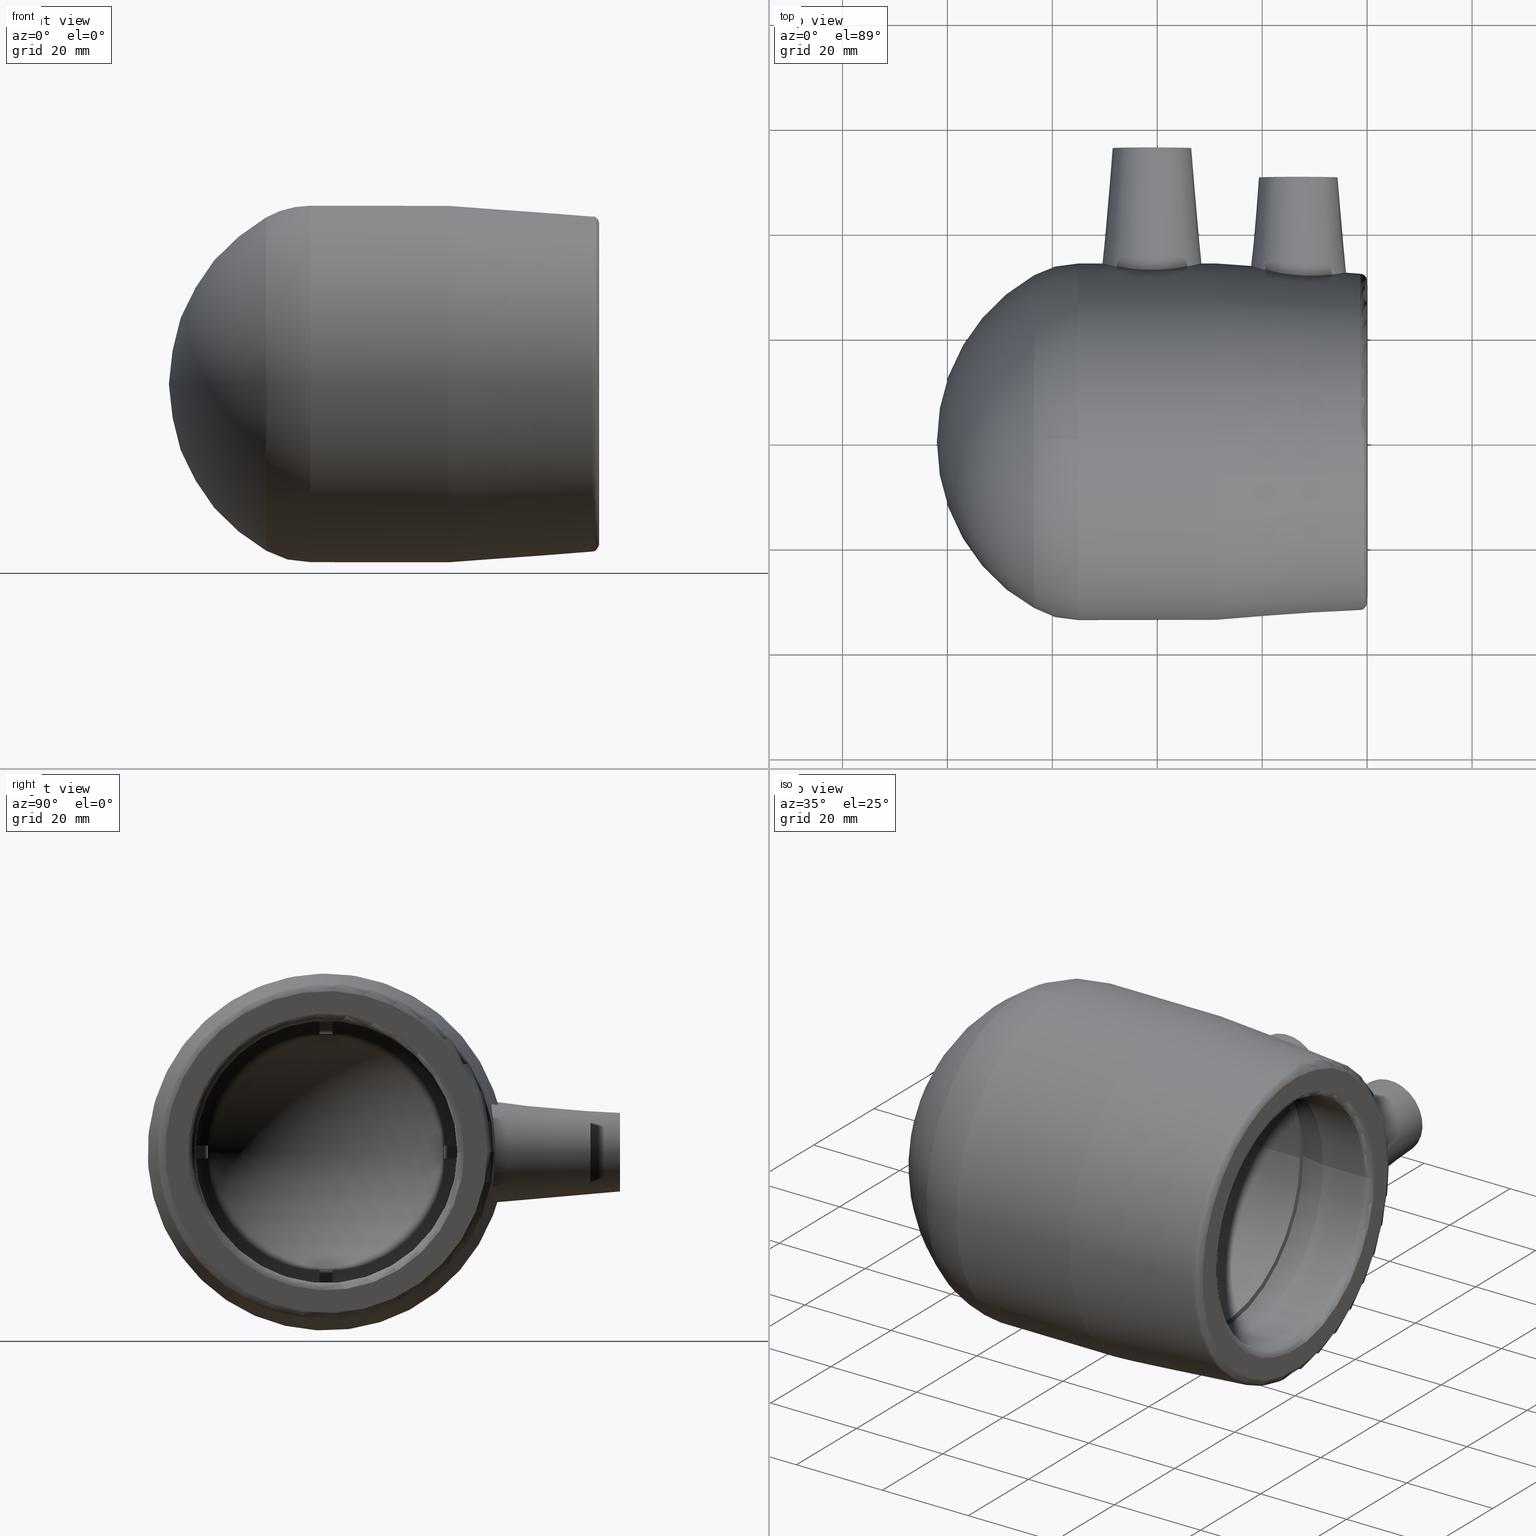
[diagram: canonical four-view strip — front | top / right | iso, engineering-drawing reading convention]
A machine part, canonical four-view strip (front | top / right | iso — engineering-drawing reading convention). The complete STEP part file that produces these views, byte-faithful:
ISO-10303-21;
HEADER;
/* Generated by software containing ST-Developer
 * from STEP Tools, Inc. (www.steptools.com) 
 */

FILE_DESCRIPTION(
/* description */ ('PLASSON END CAP MONOLITHIC 50'),
/* implementation_level */ '2;1');

FILE_NAME(
/* name */ 
'C:\\Dropbox\\KIMPROJECTS-Inventor\\99-16-3568-Processing\\ElectroFusi
on Fittings\\494204\\494204050.ipt.stp',
/* time_stamp */ '2017-11-06T09:17:09+02:00',
/* author */ ('\X2\041A043804400438043B043B\X0\'),
/* organization */ (''),
/* preprocessor_version */ 'ST-DEVELOPER v15.6',
/* originating_system */ 'Autodesk Inventor 2015',
/* authorisation */ '');

FILE_SCHEMA (('AUTOMOTIVE_DESIGN { 1 0 10303 214 3 1 1 }'));
ENDSEC;

DATA;
#10=MECHANICAL_DESIGN_GEOMETRIC_PRESENTATION_REPRESENTATION('',(#13),#1259);
#11=SHAPE_REPRESENTATION_RELATIONSHIP('SRR','None',#1268,#12);
#12=ADVANCED_BREP_SHAPE_REPRESENTATION($,(#14),#1258);
#13=STYLED_ITEM('',(#1277),#14);
#14=MANIFOLD_SOLID_BREP('Solid1',#628);
#15=(
BOUNDED_CURVE()
B_SPLINE_CURVE(2,(#1242,#1243,#1244),.UNSPECIFIED.,.F.,.F.)
B_SPLINE_CURVE_WITH_KNOTS((3,3),(-1.29036698479207E-17,0.514647429942175),
 .UNSPECIFIED.)
CURVE()
GEOMETRIC_REPRESENTATION_ITEM()
RATIONAL_B_SPLINE_CURVE((1.,0.967074537262635,1.))
REPRESENTATION_ITEM('')
);
#16=(
BOUNDED_SURFACE()
B_SPLINE_SURFACE(2,2,((#1214,#1215,#1216,#1217,#1218,#1219,#1220,#1221,
#1222),(#1223,#1224,#1225,#1226,#1227,#1228,#1229,#1230,#1231),(#1232,#1233,
#1234,#1235,#1236,#1237,#1238,#1239,#1240)),.UNSPECIFIED.,.F.,.T.,.F.)
B_SPLINE_SURFACE_WITH_KNOTS((3,3),(3,2,2,2,3),(-0.514647429942175,1.29036698479207E-17),
(-3.14159265358979,-1.5707963267949,0.,1.5707963267949,3.14159265358979),
 .UNSPECIFIED.)
GEOMETRIC_REPRESENTATION_ITEM()
RATIONAL_B_SPLINE_SURFACE(((1.,0.707106781186548,1.,0.707106781186548,1.,
0.707106781186548,1.,0.707106781186548,1.),(0.967074537262635,0.683824963211252,
0.967074537262635,0.683824963211252,0.967074537262635,0.683824963211252,
0.967074537262635,0.683824963211252,0.967074537262635),(1.,0.707106781186548,
1.,0.707106781186548,1.,0.707106781186548,1.,0.707106781186548,1.)))
REPRESENTATION_ITEM('')
SURFACE()
);
#17=CONICAL_SURFACE('',#695,7.5,5.);
#18=CONICAL_SURFACE('',#696,7.5,5.);
#19=CONICAL_SURFACE('',#700,32.98,4.06575394120089);
#20=CONICAL_SURFACE('',#715,25.5809879352314,11.9999999999999);
#21=FACE_BOUND('',#178,.T.);
#22=FACE_BOUND('',#180,.T.);
#23=FACE_BOUND('',#182,.T.);
#24=FACE_BOUND('',#184,.T.);
#25=FACE_BOUND('',#186,.T.);
#26=FACE_BOUND('',#188,.T.);
#27=FACE_BOUND('',#190,.T.);
#28=FACE_BOUND('',#192,.T.);
#29=FACE_BOUND('',#194,.T.);
#30=FACE_BOUND('',#196,.T.);
#31=FACE_BOUND('',#198,.T.);
#32=FACE_BOUND('',#200,.T.);
#33=FACE_BOUND('',#201,.T.);
#34=FACE_BOUND('',#203,.T.);
#35=FACE_BOUND('',#204,.T.);
#36=FACE_BOUND('',#206,.T.);
#37=FACE_BOUND('',#208,.T.);
#38=FACE_BOUND('',#210,.T.);
#39=FACE_BOUND('',#212,.T.);
#40=FACE_BOUND('',#215,.T.);
#41=FACE_BOUND('',#217,.T.);
#42=FACE_BOUND('',#219,.T.);
#43=CYLINDRICAL_SURFACE('',#679,2.);
#44=CYLINDRICAL_SURFACE('',#681,5.);
#45=CYLINDRICAL_SURFACE('',#687,2.);
#46=CYLINDRICAL_SURFACE('',#689,5.);
#47=CYLINDRICAL_SURFACE('',#702,34.);
#48=CYLINDRICAL_SURFACE('',#710,25.);
#49=CYLINDRICAL_SURFACE('',#719,25.);
#50=TOROIDAL_SURFACE('',#666,16.8,8.2);
#51=TOROIDAL_SURFACE('',#668,16.8,8.2);
#52=TOROIDAL_SURFACE('',#670,16.8,8.2);
#53=TOROIDAL_SURFACE('',#672,16.8,8.2);
#54=TOROIDAL_SURFACE('',#697,32.64,1.36);
#55=TOROIDAL_SURFACE('',#705,26.36,1.36);
#56=TOROIDAL_SURFACE('',#712,30.6932376955171,1.36);
#57=SPHERICAL_SURFACE('',#658,27.5);
#58=SPHERICAL_SURFACE('',#720,36.5);
#59=B_SPLINE_CURVE_WITH_KNOTS('',3,(#943,#944,#945,#946,#947,#948,#949,
#950),.UNSPECIFIED.,.F.,.F.,(4,2,2,4),(-0.399285759057804,-0.303438318216423,
-0.151719159108212,0.),.UNSPECIFIED.);
#60=B_SPLINE_CURVE_WITH_KNOTS('',3,(#960,#961,#962,#963,#964,#965,#966,
#967),.UNSPECIFIED.,.F.,.F.,(4,2,2,4),(0.,0.151719159108212,0.303438318216423,
0.399285759057804),.UNSPECIFIED.);
#61=B_SPLINE_CURVE_WITH_KNOTS('',3,(#980,#981,#982,#983,#984,#985,#986,
#987),.UNSPECIFIED.,.F.,.F.,(4,2,2,4),(-0.399285759057804,-0.303438318216423,
-0.151719159108211,0.),.UNSPECIFIED.);
#62=B_SPLINE_CURVE_WITH_KNOTS('',3,(#997,#998,#999,#1000,#1001,#1002,#1003,
#1004),.UNSPECIFIED.,.F.,.F.,(4,2,2,4),(0.,0.151719159108212,0.303438318216423,
0.399285759057804),.UNSPECIFIED.);
#63=B_SPLINE_CURVE_WITH_KNOTS('',3,(#1017,#1018,#1019,#1020,#1021,#1022,
#1023,#1024),.UNSPECIFIED.,.F.,.F.,(4,2,2,4),(-0.399285759057804,-0.303438318216423,
-0.151719159108212,0.),.UNSPECIFIED.);
#64=B_SPLINE_CURVE_WITH_KNOTS('',3,(#1034,#1035,#1036,#1037,#1038,#1039,
#1040,#1041),.UNSPECIFIED.,.F.,.F.,(4,2,2,4),(0.,0.151719159108212,0.303438318216423,
0.399285759057804),.UNSPECIFIED.);
#65=B_SPLINE_CURVE_WITH_KNOTS('',3,(#1057,#1058,#1059,#1060,#1061,#1062,
#1063,#1064),.UNSPECIFIED.,.F.,.F.,(4,2,2,4),(-0.399285759057805,-0.303438318216423,
-0.151719159108212,0.),.UNSPECIFIED.);
#66=B_SPLINE_CURVE_WITH_KNOTS('',3,(#1071,#1072,#1073,#1074,#1075,#1076,
#1077,#1078),.UNSPECIFIED.,.F.,.F.,(4,2,2,4),(0.,0.151719159108212,0.303438318216423,
0.399285759057805),.UNSPECIFIED.);
#67=B_SPLINE_CURVE_WITH_KNOTS('',3,(#1119,#1120,#1121,#1122,#1123,#1124,
#1125,#1126,#1127,#1128,#1129,#1130,#1131,#1132,#1133,#1134,#1135,#1136,
#1137,#1138,#1139,#1140,#1141,#1142,#1143,#1144,#1145,#1146,#1147,#1148,
#1149,#1150,#1151,#1152),.UNSPECIFIED.,.T.,.F.,(4,2,2,2,2,2,2,2,2,2,2,2,
2,2,2,2,4),(0.,0.338000274121242,0.676000548242485,1.01565064223469,1.35530073622689,
1.69495083021909,2.03460092421129,2.37260119833253,2.71060147245378,3.06425380256961,
3.41790613268544,3.76571420330205,4.11352227391867,4.46133034453528,4.80913841515189,
5.16279074526772,5.51644307538355),.UNSPECIFIED.);
#68=B_SPLINE_CURVE_WITH_KNOTS('',3,(#1155,#1156,#1157,#1158,#1159,#1160,
#1161,#1162,#1163,#1164,#1165,#1166,#1167,#1168,#1169,#1170,#1171,#1172,
#1173,#1174,#1175,#1176,#1177,#1178,#1179,#1180,#1181,#1182,#1183,#1184,
#1185,#1186,#1187,#1188),.UNSPECIFIED.,.T.,.F.,(4,2,2,2,2,2,2,2,2,2,2,2,
2,2,2,2,4),(0.,0.359971591059471,0.719943182118942,1.07873235291554,1.43752152371215,
1.79631069450875,2.15509986530535,2.51507145636482,2.87504304742429,3.23501463848376,
3.59498622954323,3.95377540033983,4.31256457113644,4.67135374193304,5.03014291272964,
5.39011450378911,5.75008609484858),.UNSPECIFIED.);
#69=LINE('',#937,#89);
#70=LINE('',#939,#90);
#71=LINE('',#940,#91);
#72=LINE('',#953,#92);
#73=LINE('',#957,#93);
#74=LINE('',#974,#94);
#75=LINE('',#976,#95);
#76=LINE('',#977,#96);
#77=LINE('',#990,#97);
#78=LINE('',#994,#98);
#79=LINE('',#1011,#99);
#80=LINE('',#1013,#100);
#81=LINE('',#1014,#101);
#82=LINE('',#1027,#102);
#83=LINE('',#1031,#103);
#84=LINE('',#1083,#104);
#85=LINE('',#1084,#105);
#86=LINE('',#1088,#106);
#87=LINE('',#1089,#107);
#88=LINE('',#1091,#108);
#89=VECTOR('',#735,2.46873044429772);
#90=VECTOR('',#736,2.5);
#91=VECTOR('',#737,2.46873044429772);
#92=VECTOR('',#742,6.2619002661481);
#93=VECTOR('',#747,6.2619002661481);
#94=VECTOR('',#756,2.46873044429772);
#95=VECTOR('',#757,2.5);
#96=VECTOR('',#758,2.46873044429772);
#97=VECTOR('',#763,6.2619002661481);
#98=VECTOR('',#768,6.2619002661481);
#99=VECTOR('',#777,2.46873044429772);
#100=VECTOR('',#778,2.5);
#101=VECTOR('',#779,2.46873044429772);
#102=VECTOR('',#784,6.2619002661481);
#103=VECTOR('',#789,6.2619002661481);
#104=VECTOR('',#828,2.46873044429772);
#105=VECTOR('',#829,6.2619002661481);
#106=VECTOR('',#834,2.46873044429772);
#107=VECTOR('',#835,2.5);
#108=VECTOR('',#838,6.2619002661481);
#109=FACE_OUTER_BOUND('',#154,.T.);
#110=FACE_OUTER_BOUND('',#155,.T.);
#111=FACE_OUTER_BOUND('',#156,.T.);
#112=FACE_OUTER_BOUND('',#157,.T.);
#113=FACE_OUTER_BOUND('',#158,.T.);
#114=FACE_OUTER_BOUND('',#159,.T.);
#115=FACE_OUTER_BOUND('',#160,.T.);
#116=FACE_OUTER_BOUND('',#161,.T.);
#117=FACE_OUTER_BOUND('',#162,.T.);
#118=FACE_OUTER_BOUND('',#163,.T.);
#119=FACE_OUTER_BOUND('',#164,.T.);
#120=FACE_OUTER_BOUND('',#165,.T.);
#121=FACE_OUTER_BOUND('',#166,.T.);
#122=FACE_OUTER_BOUND('',#167,.T.);
#123=FACE_OUTER_BOUND('',#168,.T.);
#124=FACE_OUTER_BOUND('',#169,.T.);
#125=FACE_OUTER_BOUND('',#170,.T.);
#126=FACE_OUTER_BOUND('',#171,.T.);
#127=FACE_OUTER_BOUND('',#172,.T.);
#128=FACE_OUTER_BOUND('',#173,.T.);
#129=FACE_OUTER_BOUND('',#174,.T.);
#130=FACE_OUTER_BOUND('',#175,.T.);
#131=FACE_OUTER_BOUND('',#176,.T.);
#132=FACE_OUTER_BOUND('',#177,.T.);
#133=FACE_OUTER_BOUND('',#179,.T.);
#134=FACE_OUTER_BOUND('',#181,.T.);
#135=FACE_OUTER_BOUND('',#183,.T.);
#136=FACE_OUTER_BOUND('',#185,.T.);
#137=FACE_OUTER_BOUND('',#187,.T.);
#138=FACE_OUTER_BOUND('',#189,.T.);
#139=FACE_OUTER_BOUND('',#191,.T.);
#140=FACE_OUTER_BOUND('',#193,.T.);
#141=FACE_OUTER_BOUND('',#195,.T.);
#142=FACE_OUTER_BOUND('',#197,.T.);
#143=FACE_OUTER_BOUND('',#199,.T.);
#144=FACE_OUTER_BOUND('',#202,.T.);
#145=FACE_OUTER_BOUND('',#205,.T.);
#146=FACE_OUTER_BOUND('',#207,.T.);
#147=FACE_OUTER_BOUND('',#209,.T.);
#148=FACE_OUTER_BOUND('',#211,.T.);
#149=FACE_OUTER_BOUND('',#213,.T.);
#150=FACE_OUTER_BOUND('',#214,.T.);
#151=FACE_OUTER_BOUND('',#216,.T.);
#152=FACE_OUTER_BOUND('',#218,.T.);
#153=FACE_OUTER_BOUND('',#220,.T.);
#154=EDGE_LOOP('',(#403));
#155=EDGE_LOOP('',(#404));
#156=EDGE_LOOP('',(#405,#406,#407,#408));
#157=EDGE_LOOP('',(#409,#410,#411,#412));
#158=EDGE_LOOP('',(#413,#414,#415,#416));
#159=EDGE_LOOP('',(#417,#418,#419,#420));
#160=EDGE_LOOP('',(#421,#422,#423,#424));
#161=EDGE_LOOP('',(#425,#426,#427,#428));
#162=EDGE_LOOP('',(#429,#430,#431,#432));
#163=EDGE_LOOP('',(#433,#434,#435,#436));
#164=EDGE_LOOP('',(#437,#438,#439,#440));
#165=EDGE_LOOP('',(#441,#442,#443,#444));
#166=EDGE_LOOP('',(#445,#446,#447,#448));
#167=EDGE_LOOP('',(#449,#450,#451,#452));
#168=EDGE_LOOP('',(#453,#454,#455,#456,#457,#458,#459,#460,#461,#462,#463,
#464,#465,#466,#467,#468));
#169=EDGE_LOOP('',(#469,#470,#471,#472));
#170=EDGE_LOOP('',(#473,#474,#475,#476));
#171=EDGE_LOOP('',(#477,#478,#479,#480));
#172=EDGE_LOOP('',(#481,#482,#483,#484));
#173=EDGE_LOOP('',(#485,#486,#487,#488));
#174=EDGE_LOOP('',(#489,#490,#491,#492));
#175=EDGE_LOOP('',(#493,#494,#495,#496));
#176=EDGE_LOOP('',(#497,#498,#499,#500));
#177=EDGE_LOOP('',(#501));
#178=EDGE_LOOP('',(#502));
#179=EDGE_LOOP('',(#503));
#180=EDGE_LOOP('',(#504));
#181=EDGE_LOOP('',(#505));
#182=EDGE_LOOP('',(#506));
#183=EDGE_LOOP('',(#507));
#184=EDGE_LOOP('',(#508));
#185=EDGE_LOOP('',(#509));
#186=EDGE_LOOP('',(#510));
#187=EDGE_LOOP('',(#511));
#188=EDGE_LOOP('',(#512));
#189=EDGE_LOOP('',(#513));
#190=EDGE_LOOP('',(#514));
#191=EDGE_LOOP('',(#515));
#192=EDGE_LOOP('',(#516));
#193=EDGE_LOOP('',(#517));
#194=EDGE_LOOP('',(#518));
#195=EDGE_LOOP('',(#519));
#196=EDGE_LOOP('',(#520));
#197=EDGE_LOOP('',(#521));
#198=EDGE_LOOP('',(#522));
#199=EDGE_LOOP('',(#523));
#200=EDGE_LOOP('',(#524));
#201=EDGE_LOOP('',(#525));
#202=EDGE_LOOP('',(#526,#527));
#203=EDGE_LOOP('',(#528));
#204=EDGE_LOOP('',(#529));
#205=EDGE_LOOP('',(#530));
#206=EDGE_LOOP('',(#531));
#207=EDGE_LOOP('',(#532));
#208=EDGE_LOOP('',(#533));
#209=EDGE_LOOP('',(#534));
#210=EDGE_LOOP('',(#535));
#211=EDGE_LOOP('',(#536));
#212=EDGE_LOOP('',(#537));
#213=EDGE_LOOP('',(#538,#539,#540,#541,#542,#543));
#214=EDGE_LOOP('',(#544));
#215=EDGE_LOOP('',(#545));
#216=EDGE_LOOP('',(#546));
#217=EDGE_LOOP('',(#547));
#218=EDGE_LOOP('',(#548,#549,#550,#551,#552,#553,#554,#555));
#219=EDGE_LOOP('',(#556));
#220=EDGE_LOOP('',(#557,#558));
#221=CIRCLE('',#631,2.);
#222=CIRCLE('',#633,2.);
#223=CIRCLE('',#635,25.);
#224=CIRCLE('',#637,27.4715762197949);
#225=CIRCLE('',#639,15.8113883008418);
#226=CIRCLE('',#641,27.4715762197949);
#227=CIRCLE('',#643,25.);
#228=CIRCLE('',#645,27.4715762197949);
#229=CIRCLE('',#647,15.8113883008418);
#230=CIRCLE('',#649,27.4715762197949);
#231=CIRCLE('',#651,25.);
#232=CIRCLE('',#653,27.4715762197949);
#233=CIRCLE('',#655,15.8113883008418);
#234=CIRCLE('',#657,27.4715762197949);
#235=CIRCLE('',#659,23.9378238341969);
#236=CIRCLE('',#660,27.4715762197949);
#237=CIRCLE('',#661,15.8113883008418);
#238=CIRCLE('',#662,27.4715762197949);
#239=CIRCLE('',#663,23.9378238341969);
#240=CIRCLE('',#664,23.9378238341969);
#241=CIRCLE('',#665,23.9378238341969);
#242=CIRCLE('',#667,25.);
#243=CIRCLE('',#669,25.);
#244=CIRCLE('',#671,25.);
#245=CIRCLE('',#673,25.);
#246=CIRCLE('',#676,25.);
#247=CIRCLE('',#680,2.);
#248=CIRCLE('',#682,5.);
#249=CIRCLE('',#683,5.);
#250=CIRCLE('',#686,7.5);
#251=CIRCLE('',#688,2.);
#252=CIRCLE('',#690,5.);
#253=CIRCLE('',#691,5.);
#254=CIRCLE('',#694,7.5);
#255=CIRCLE('',#698,34.);
#256=CIRCLE('',#699,33.9965773413731);
#257=CIRCLE('',#701,32.0498150368903);
#258=CIRCLE('',#703,34.);
#259=CIRCLE('',#704,34.);
#260=CIRCLE('',#706,26.36);
#261=CIRCLE('',#707,25.);
#262=CIRCLE('',#709,30.6932376955171);
#263=CIRCLE('',#711,25.);
#264=CIRCLE('',#713,31.7720207253886);
#265=CIRCLE('',#714,31.7720207253886);
#266=CIRCLE('',#716,26.1619758704628);
#267=CIRCLE('',#718,25.);
#268=VERTEX_POINT('',#927);
#269=VERTEX_POINT('',#930);
#270=VERTEX_POINT('',#933);
#271=VERTEX_POINT('',#934);
#272=VERTEX_POINT('',#936);
#273=VERTEX_POINT('',#938);
#274=VERTEX_POINT('',#942);
#275=VERTEX_POINT('',#951);
#276=VERTEX_POINT('',#955);
#277=VERTEX_POINT('',#959);
#278=VERTEX_POINT('',#970);
#279=VERTEX_POINT('',#971);
#280=VERTEX_POINT('',#973);
#281=VERTEX_POINT('',#975);
#282=VERTEX_POINT('',#979);
#283=VERTEX_POINT('',#988);
#284=VERTEX_POINT('',#992);
#285=VERTEX_POINT('',#996);
#286=VERTEX_POINT('',#1007);
#287=VERTEX_POINT('',#1008);
#288=VERTEX_POINT('',#1010);
#289=VERTEX_POINT('',#1012);
#290=VERTEX_POINT('',#1016);
#291=VERTEX_POINT('',#1025);
#292=VERTEX_POINT('',#1029);
#293=VERTEX_POINT('',#1033);
#294=VERTEX_POINT('',#1044);
#295=VERTEX_POINT('',#1046);
#296=VERTEX_POINT('',#1048);
#297=VERTEX_POINT('',#1050);
#298=VERTEX_POINT('',#1056);
#299=VERTEX_POINT('',#1069);
#300=VERTEX_POINT('',#1082);
#301=VERTEX_POINT('',#1087);
#302=VERTEX_POINT('',#1094);
#303=VERTEX_POINT('',#1097);
#304=VERTEX_POINT('',#1099);
#305=VERTEX_POINT('',#1103);
#306=VERTEX_POINT('',#1106);
#307=VERTEX_POINT('',#1109);
#308=VERTEX_POINT('',#1111);
#309=VERTEX_POINT('',#1115);
#310=VERTEX_POINT('',#1118);
#311=VERTEX_POINT('',#1154);
#312=VERTEX_POINT('',#1190);
#313=VERTEX_POINT('',#1192);
#314=VERTEX_POINT('',#1195);
#315=VERTEX_POINT('',#1198);
#316=VERTEX_POINT('',#1199);
#317=VERTEX_POINT('',#1203);
#318=VERTEX_POINT('',#1205);
#319=VERTEX_POINT('',#1208);
#320=VERTEX_POINT('',#1211);
#321=VERTEX_POINT('',#1241);
#322=VERTEX_POINT('',#1245);
#323=VERTEX_POINT('',#1249);
#324=VERTEX_POINT('',#1252);
#325=EDGE_CURVE('',#268,#268,#221,.T.);
#326=EDGE_CURVE('',#269,#269,#222,.T.);
#327=EDGE_CURVE('',#270,#271,#223,.T.);
#328=EDGE_CURVE('',#272,#271,#69,.T.);
#329=EDGE_CURVE('',#272,#273,#70,.T.);
#330=EDGE_CURVE('',#270,#273,#71,.T.);
#331=EDGE_CURVE('',#274,#271,#59,.T.);
#332=EDGE_CURVE('',#275,#274,#224,.T.);
#333=EDGE_CURVE('',#275,#272,#72,.T.);
#334=EDGE_CURVE('',#276,#275,#225,.T.);
#335=EDGE_CURVE('',#273,#276,#73,.T.);
#336=EDGE_CURVE('',#270,#277,#60,.T.);
#337=EDGE_CURVE('',#277,#276,#226,.T.);
#338=EDGE_CURVE('',#278,#279,#227,.T.);
#339=EDGE_CURVE('',#280,#279,#74,.T.);
#340=EDGE_CURVE('',#280,#281,#75,.T.);
#341=EDGE_CURVE('',#278,#281,#76,.T.);
#342=EDGE_CURVE('',#282,#279,#61,.T.);
#343=EDGE_CURVE('',#283,#282,#228,.T.);
#344=EDGE_CURVE('',#283,#280,#77,.T.);
#345=EDGE_CURVE('',#284,#283,#229,.T.);
#346=EDGE_CURVE('',#281,#284,#78,.T.);
#347=EDGE_CURVE('',#278,#285,#62,.T.);
#348=EDGE_CURVE('',#285,#284,#230,.T.);
#349=EDGE_CURVE('',#286,#287,#231,.T.);
#350=EDGE_CURVE('',#288,#287,#79,.T.);
#351=EDGE_CURVE('',#288,#289,#80,.T.);
#352=EDGE_CURVE('',#286,#289,#81,.T.);
#353=EDGE_CURVE('',#290,#287,#63,.T.);
#354=EDGE_CURVE('',#291,#290,#232,.T.);
#355=EDGE_CURVE('',#291,#288,#82,.T.);
#356=EDGE_CURVE('',#292,#291,#233,.T.);
#357=EDGE_CURVE('',#289,#292,#83,.T.);
#358=EDGE_CURVE('',#286,#293,#64,.T.);
#359=EDGE_CURVE('',#293,#292,#234,.T.);
#360=EDGE_CURVE('',#274,#294,#235,.T.);
#361=EDGE_CURVE('',#294,#295,#236,.T.);
#362=EDGE_CURVE('',#295,#296,#237,.T.);
#363=EDGE_CURVE('',#296,#297,#238,.T.);
#364=EDGE_CURVE('',#297,#293,#239,.T.);
#365=EDGE_CURVE('',#290,#285,#240,.T.);
#366=EDGE_CURVE('',#282,#277,#241,.T.);
#367=EDGE_CURVE('',#297,#298,#65,.T.);
#368=EDGE_CURVE('',#298,#286,#242,.T.);
#369=EDGE_CURVE('',#287,#278,#243,.T.);
#370=EDGE_CURVE('',#271,#299,#244,.T.);
#371=EDGE_CURVE('',#299,#294,#66,.T.);
#372=EDGE_CURVE('',#279,#270,#245,.T.);
#373=EDGE_CURVE('',#299,#300,#84,.T.);
#374=EDGE_CURVE('',#300,#295,#85,.T.);
#375=EDGE_CURVE('',#299,#298,#246,.T.);
#376=EDGE_CURVE('',#301,#298,#86,.T.);
#377=EDGE_CURVE('',#301,#300,#87,.T.);
#378=EDGE_CURVE('',#296,#301,#88,.T.);
#379=EDGE_CURVE('',#302,#302,#247,.T.);
#380=EDGE_CURVE('',#303,#303,#248,.T.);
#381=EDGE_CURVE('',#304,#304,#249,.T.);
#382=EDGE_CURVE('',#305,#305,#250,.T.);
#383=EDGE_CURVE('',#306,#306,#251,.T.);
#384=EDGE_CURVE('',#307,#307,#252,.T.);
#385=EDGE_CURVE('',#308,#308,#253,.T.);
#386=EDGE_CURVE('',#309,#309,#254,.T.);
#387=EDGE_CURVE('',#310,#310,#67,.T.);
#388=EDGE_CURVE('',#311,#311,#68,.T.);
#389=EDGE_CURVE('',#312,#312,#255,.T.);
#390=EDGE_CURVE('',#313,#313,#256,.T.);
#391=EDGE_CURVE('',#314,#314,#257,.T.);
#392=EDGE_CURVE('',#315,#316,#258,.T.);
#393=EDGE_CURVE('',#316,#315,#259,.T.);
#394=EDGE_CURVE('',#317,#317,#260,.T.);
#395=EDGE_CURVE('',#318,#318,#261,.T.);
#396=EDGE_CURVE('',#319,#319,#262,.T.);
#397=EDGE_CURVE('',#320,#320,#263,.T.);
#398=EDGE_CURVE('',#316,#321,#15,.T.);
#399=EDGE_CURVE('',#321,#322,#264,.T.);
#400=EDGE_CURVE('',#322,#321,#265,.T.);
#401=EDGE_CURVE('',#323,#323,#266,.T.);
#402=EDGE_CURVE('',#324,#324,#267,.T.);
#403=ORIENTED_EDGE('',*,*,#325,.F.);
#404=ORIENTED_EDGE('',*,*,#326,.F.);
#405=ORIENTED_EDGE('',*,*,#327,.T.);
#406=ORIENTED_EDGE('',*,*,#328,.F.);
#407=ORIENTED_EDGE('',*,*,#329,.T.);
#408=ORIENTED_EDGE('',*,*,#330,.F.);
#409=ORIENTED_EDGE('',*,*,#331,.F.);
#410=ORIENTED_EDGE('',*,*,#332,.F.);
#411=ORIENTED_EDGE('',*,*,#333,.T.);
#412=ORIENTED_EDGE('',*,*,#328,.T.);
#413=ORIENTED_EDGE('',*,*,#334,.F.);
#414=ORIENTED_EDGE('',*,*,#335,.F.);
#415=ORIENTED_EDGE('',*,*,#329,.F.);
#416=ORIENTED_EDGE('',*,*,#333,.F.);
#417=ORIENTED_EDGE('',*,*,#336,.F.);
#418=ORIENTED_EDGE('',*,*,#330,.T.);
#419=ORIENTED_EDGE('',*,*,#335,.T.);
#420=ORIENTED_EDGE('',*,*,#337,.F.);
#421=ORIENTED_EDGE('',*,*,#338,.T.);
#422=ORIENTED_EDGE('',*,*,#339,.F.);
#423=ORIENTED_EDGE('',*,*,#340,.T.);
#424=ORIENTED_EDGE('',*,*,#341,.F.);
#425=ORIENTED_EDGE('',*,*,#342,.F.);
#426=ORIENTED_EDGE('',*,*,#343,.F.);
#427=ORIENTED_EDGE('',*,*,#344,.T.);
#428=ORIENTED_EDGE('',*,*,#339,.T.);
#429=ORIENTED_EDGE('',*,*,#345,.F.);
#430=ORIENTED_EDGE('',*,*,#346,.F.);
#431=ORIENTED_EDGE('',*,*,#340,.F.);
#432=ORIENTED_EDGE('',*,*,#344,.F.);
#433=ORIENTED_EDGE('',*,*,#347,.F.);
#434=ORIENTED_EDGE('',*,*,#341,.T.);
#435=ORIENTED_EDGE('',*,*,#346,.T.);
#436=ORIENTED_EDGE('',*,*,#348,.F.);
#437=ORIENTED_EDGE('',*,*,#349,.T.);
#438=ORIENTED_EDGE('',*,*,#350,.F.);
#439=ORIENTED_EDGE('',*,*,#351,.T.);
#440=ORIENTED_EDGE('',*,*,#352,.F.);
#441=ORIENTED_EDGE('',*,*,#353,.F.);
#442=ORIENTED_EDGE('',*,*,#354,.F.);
#443=ORIENTED_EDGE('',*,*,#355,.T.);
#444=ORIENTED_EDGE('',*,*,#350,.T.);
#445=ORIENTED_EDGE('',*,*,#356,.F.);
#446=ORIENTED_EDGE('',*,*,#357,.F.);
#447=ORIENTED_EDGE('',*,*,#351,.F.);
#448=ORIENTED_EDGE('',*,*,#355,.F.);
#449=ORIENTED_EDGE('',*,*,#358,.F.);
#450=ORIENTED_EDGE('',*,*,#352,.T.);
#451=ORIENTED_EDGE('',*,*,#357,.T.);
#452=ORIENTED_EDGE('',*,*,#359,.F.);
#453=ORIENTED_EDGE('',*,*,#337,.T.);
#454=ORIENTED_EDGE('',*,*,#334,.T.);
#455=ORIENTED_EDGE('',*,*,#332,.T.);
#456=ORIENTED_EDGE('',*,*,#360,.T.);
#457=ORIENTED_EDGE('',*,*,#361,.T.);
#458=ORIENTED_EDGE('',*,*,#362,.T.);
#459=ORIENTED_EDGE('',*,*,#363,.T.);
#460=ORIENTED_EDGE('',*,*,#364,.T.);
#461=ORIENTED_EDGE('',*,*,#359,.T.);
#462=ORIENTED_EDGE('',*,*,#356,.T.);
#463=ORIENTED_EDGE('',*,*,#354,.T.);
#464=ORIENTED_EDGE('',*,*,#365,.T.);
#465=ORIENTED_EDGE('',*,*,#348,.T.);
#466=ORIENTED_EDGE('',*,*,#345,.T.);
#467=ORIENTED_EDGE('',*,*,#343,.T.);
#468=ORIENTED_EDGE('',*,*,#366,.T.);
#469=ORIENTED_EDGE('',*,*,#358,.T.);
#470=ORIENTED_EDGE('',*,*,#364,.F.);
#471=ORIENTED_EDGE('',*,*,#367,.T.);
#472=ORIENTED_EDGE('',*,*,#368,.T.);
#473=ORIENTED_EDGE('',*,*,#347,.T.);
#474=ORIENTED_EDGE('',*,*,#365,.F.);
#475=ORIENTED_EDGE('',*,*,#353,.T.);
#476=ORIENTED_EDGE('',*,*,#369,.T.);
#477=ORIENTED_EDGE('',*,*,#331,.T.);
#478=ORIENTED_EDGE('',*,*,#370,.T.);
#479=ORIENTED_EDGE('',*,*,#371,.T.);
#480=ORIENTED_EDGE('',*,*,#360,.F.);
#481=ORIENTED_EDGE('',*,*,#336,.T.);
#482=ORIENTED_EDGE('',*,*,#366,.F.);
#483=ORIENTED_EDGE('',*,*,#342,.T.);
#484=ORIENTED_EDGE('',*,*,#372,.T.);
#485=ORIENTED_EDGE('',*,*,#361,.F.);
#486=ORIENTED_EDGE('',*,*,#371,.F.);
#487=ORIENTED_EDGE('',*,*,#373,.T.);
#488=ORIENTED_EDGE('',*,*,#374,.T.);
#489=ORIENTED_EDGE('',*,*,#375,.T.);
#490=ORIENTED_EDGE('',*,*,#376,.F.);
#491=ORIENTED_EDGE('',*,*,#377,.T.);
#492=ORIENTED_EDGE('',*,*,#373,.F.);
#493=ORIENTED_EDGE('',*,*,#363,.F.);
#494=ORIENTED_EDGE('',*,*,#378,.T.);
#495=ORIENTED_EDGE('',*,*,#376,.T.);
#496=ORIENTED_EDGE('',*,*,#367,.F.);
#497=ORIENTED_EDGE('',*,*,#362,.F.);
#498=ORIENTED_EDGE('',*,*,#374,.F.);
#499=ORIENTED_EDGE('',*,*,#377,.F.);
#500=ORIENTED_EDGE('',*,*,#378,.F.);
#501=ORIENTED_EDGE('',*,*,#325,.T.);
#502=ORIENTED_EDGE('',*,*,#379,.T.);
#503=ORIENTED_EDGE('',*,*,#380,.T.);
#504=ORIENTED_EDGE('',*,*,#381,.F.);
#505=ORIENTED_EDGE('',*,*,#380,.F.);
#506=ORIENTED_EDGE('',*,*,#379,.F.);
#507=ORIENTED_EDGE('',*,*,#382,.F.);
#508=ORIENTED_EDGE('',*,*,#381,.T.);
#509=ORIENTED_EDGE('',*,*,#326,.T.);
#510=ORIENTED_EDGE('',*,*,#383,.T.);
#511=ORIENTED_EDGE('',*,*,#384,.T.);
#512=ORIENTED_EDGE('',*,*,#385,.F.);
#513=ORIENTED_EDGE('',*,*,#384,.F.);
#514=ORIENTED_EDGE('',*,*,#383,.F.);
#515=ORIENTED_EDGE('',*,*,#386,.F.);
#516=ORIENTED_EDGE('',*,*,#385,.T.);
#517=ORIENTED_EDGE('',*,*,#382,.T.);
#518=ORIENTED_EDGE('',*,*,#387,.F.);
#519=ORIENTED_EDGE('',*,*,#386,.T.);
#520=ORIENTED_EDGE('',*,*,#388,.F.);
#521=ORIENTED_EDGE('',*,*,#389,.T.);
#522=ORIENTED_EDGE('',*,*,#390,.T.);
#523=ORIENTED_EDGE('',*,*,#391,.F.);
#524=ORIENTED_EDGE('',*,*,#387,.T.);
#525=ORIENTED_EDGE('',*,*,#390,.F.);
#526=ORIENTED_EDGE('',*,*,#392,.T.);
#527=ORIENTED_EDGE('',*,*,#393,.T.);
#528=ORIENTED_EDGE('',*,*,#388,.T.);
#529=ORIENTED_EDGE('',*,*,#389,.F.);
#530=ORIENTED_EDGE('',*,*,#394,.T.);
#531=ORIENTED_EDGE('',*,*,#395,.T.);
#532=ORIENTED_EDGE('',*,*,#396,.F.);
#533=ORIENTED_EDGE('',*,*,#394,.F.);
#534=ORIENTED_EDGE('',*,*,#397,.F.);
#535=ORIENTED_EDGE('',*,*,#395,.F.);
#536=ORIENTED_EDGE('',*,*,#396,.T.);
#537=ORIENTED_EDGE('',*,*,#391,.T.);
#538=ORIENTED_EDGE('',*,*,#392,.F.);
#539=ORIENTED_EDGE('',*,*,#393,.F.);
#540=ORIENTED_EDGE('',*,*,#398,.T.);
#541=ORIENTED_EDGE('',*,*,#399,.T.);
#542=ORIENTED_EDGE('',*,*,#400,.T.);
#543=ORIENTED_EDGE('',*,*,#398,.F.);
#544=ORIENTED_EDGE('',*,*,#401,.F.);
#545=ORIENTED_EDGE('',*,*,#397,.T.);
#546=ORIENTED_EDGE('',*,*,#401,.T.);
#547=ORIENTED_EDGE('',*,*,#402,.F.);
#548=ORIENTED_EDGE('',*,*,#368,.F.);
#549=ORIENTED_EDGE('',*,*,#375,.F.);
#550=ORIENTED_EDGE('',*,*,#370,.F.);
#551=ORIENTED_EDGE('',*,*,#327,.F.);
#552=ORIENTED_EDGE('',*,*,#372,.F.);
#553=ORIENTED_EDGE('',*,*,#338,.F.);
#554=ORIENTED_EDGE('',*,*,#369,.F.);
#555=ORIENTED_EDGE('',*,*,#349,.F.);
#556=ORIENTED_EDGE('',*,*,#402,.T.);
#557=ORIENTED_EDGE('',*,*,#400,.F.);
#558=ORIENTED_EDGE('',*,*,#399,.F.);
#559=PLANE('',#630);
#560=PLANE('',#632);
#561=PLANE('',#634);
#562=PLANE('',#636);
#563=PLANE('',#638);
#564=PLANE('',#640);
#565=PLANE('',#642);
#566=PLANE('',#644);
#567=PLANE('',#646);
#568=PLANE('',#648);
#569=PLANE('',#650);
#570=PLANE('',#652);
#571=PLANE('',#654);
#572=PLANE('',#656);
#573=PLANE('',#674);
#574=PLANE('',#675);
#575=PLANE('',#677);
#576=PLANE('',#678);
#577=PLANE('',#684);
#578=PLANE('',#685);
#579=PLANE('',#692);
#580=PLANE('',#693);
#581=PLANE('',#708);
#582=PLANE('',#717);
#583=ADVANCED_FACE('',(#109),#559,.T.);
#584=ADVANCED_FACE('',(#110),#560,.T.);
#585=ADVANCED_FACE('',(#111),#561,.T.);
#586=ADVANCED_FACE('',(#112),#562,.T.);
#587=ADVANCED_FACE('',(#113),#563,.T.);
#588=ADVANCED_FACE('',(#114),#564,.T.);
#589=ADVANCED_FACE('',(#115),#565,.T.);
#590=ADVANCED_FACE('',(#116),#566,.T.);
#591=ADVANCED_FACE('',(#117),#567,.T.);
#592=ADVANCED_FACE('',(#118),#568,.T.);
#593=ADVANCED_FACE('',(#119),#569,.T.);
#594=ADVANCED_FACE('',(#120),#570,.T.);
#595=ADVANCED_FACE('',(#121),#571,.T.);
#596=ADVANCED_FACE('',(#122),#572,.T.);
#597=ADVANCED_FACE('',(#123),#57,.F.);
#598=ADVANCED_FACE('',(#124),#50,.F.);
#599=ADVANCED_FACE('',(#125),#51,.F.);
#600=ADVANCED_FACE('',(#126),#52,.F.);
#601=ADVANCED_FACE('',(#127),#53,.F.);
#602=ADVANCED_FACE('',(#128),#573,.T.);
#603=ADVANCED_FACE('',(#129),#574,.T.);
#604=ADVANCED_FACE('',(#130),#575,.T.);
#605=ADVANCED_FACE('',(#131),#576,.T.);
#606=ADVANCED_FACE('',(#132,#21),#43,.T.);
#607=ADVANCED_FACE('',(#133,#22),#44,.F.);
#608=ADVANCED_FACE('',(#134,#23),#577,.T.);
#609=ADVANCED_FACE('',(#135,#24),#578,.T.);
#610=ADVANCED_FACE('',(#136,#25),#45,.T.);
#611=ADVANCED_FACE('',(#137,#26),#46,.F.);
#612=ADVANCED_FACE('',(#138,#27),#579,.T.);
#613=ADVANCED_FACE('',(#139,#28),#580,.T.);
#614=ADVANCED_FACE('',(#140,#29),#17,.T.);
#615=ADVANCED_FACE('',(#141,#30),#18,.T.);
#616=ADVANCED_FACE('',(#142,#31),#54,.T.);
#617=ADVANCED_FACE('',(#143,#32,#33),#19,.T.);
#618=ADVANCED_FACE('',(#144,#34,#35),#47,.T.);
#619=ADVANCED_FACE('',(#145,#36),#55,.T.);
#620=ADVANCED_FACE('',(#146,#37),#581,.T.);
#621=ADVANCED_FACE('',(#147,#38),#48,.F.);
#622=ADVANCED_FACE('',(#148,#39),#56,.T.);
#623=ADVANCED_FACE('',(#149),#16,.F.);
#624=ADVANCED_FACE('',(#150,#40),#20,.F.);
#625=ADVANCED_FACE('',(#151,#41),#582,.T.);
#626=ADVANCED_FACE('',(#152,#42),#49,.F.);
#627=ADVANCED_FACE('',(#153),#58,.T.);
#628=CLOSED_SHELL('',(#583,#584,#585,#586,#587,#588,#589,#590,#591,#592,
#593,#594,#595,#596,#597,#598,#599,#600,#601,#602,#603,#604,#605,#606,#607,
#608,#609,#610,#611,#612,#613,#614,#615,#616,#617,#618,#619,#620,#621,#622,
#623,#624,#625,#626,#627));
#629=AXIS2_PLACEMENT_3D('placement',#925,#721,#722);
#630=AXIS2_PLACEMENT_3D('',#926,#723,#724);
#631=AXIS2_PLACEMENT_3D('',#928,#725,#726);
#632=AXIS2_PLACEMENT_3D('',#929,#727,#728);
#633=AXIS2_PLACEMENT_3D('',#931,#729,#730);
#634=AXIS2_PLACEMENT_3D('',#932,#731,#732);
#635=AXIS2_PLACEMENT_3D('',#935,#733,#734);
#636=AXIS2_PLACEMENT_3D('',#941,#738,#739);
#637=AXIS2_PLACEMENT_3D('',#952,#740,#741);
#638=AXIS2_PLACEMENT_3D('',#954,#743,#744);
#639=AXIS2_PLACEMENT_3D('',#956,#745,#746);
#640=AXIS2_PLACEMENT_3D('',#958,#748,#749);
#641=AXIS2_PLACEMENT_3D('',#968,#750,#751);
#642=AXIS2_PLACEMENT_3D('',#969,#752,#753);
#643=AXIS2_PLACEMENT_3D('',#972,#754,#755);
#644=AXIS2_PLACEMENT_3D('',#978,#759,#760);
#645=AXIS2_PLACEMENT_3D('',#989,#761,#762);
#646=AXIS2_PLACEMENT_3D('',#991,#764,#765);
#647=AXIS2_PLACEMENT_3D('',#993,#766,#767);
#648=AXIS2_PLACEMENT_3D('',#995,#769,#770);
#649=AXIS2_PLACEMENT_3D('',#1005,#771,#772);
#650=AXIS2_PLACEMENT_3D('',#1006,#773,#774);
#651=AXIS2_PLACEMENT_3D('',#1009,#775,#776);
#652=AXIS2_PLACEMENT_3D('',#1015,#780,#781);
#653=AXIS2_PLACEMENT_3D('',#1026,#782,#783);
#654=AXIS2_PLACEMENT_3D('',#1028,#785,#786);
#655=AXIS2_PLACEMENT_3D('',#1030,#787,#788);
#656=AXIS2_PLACEMENT_3D('',#1032,#790,#791);
#657=AXIS2_PLACEMENT_3D('',#1042,#792,#793);
#658=AXIS2_PLACEMENT_3D('',#1043,#794,#795);
#659=AXIS2_PLACEMENT_3D('',#1045,#796,#797);
#660=AXIS2_PLACEMENT_3D('',#1047,#798,#799);
#661=AXIS2_PLACEMENT_3D('',#1049,#800,#801);
#662=AXIS2_PLACEMENT_3D('',#1051,#802,#803);
#663=AXIS2_PLACEMENT_3D('',#1052,#804,#805);
#664=AXIS2_PLACEMENT_3D('',#1053,#806,#807);
#665=AXIS2_PLACEMENT_3D('',#1054,#808,#809);
#666=AXIS2_PLACEMENT_3D('',#1055,#810,#811);
#667=AXIS2_PLACEMENT_3D('',#1065,#812,#813);
#668=AXIS2_PLACEMENT_3D('',#1066,#814,#815);
#669=AXIS2_PLACEMENT_3D('',#1067,#816,#817);
#670=AXIS2_PLACEMENT_3D('',#1068,#818,#819);
#671=AXIS2_PLACEMENT_3D('',#1070,#820,#821);
#672=AXIS2_PLACEMENT_3D('',#1079,#822,#823);
#673=AXIS2_PLACEMENT_3D('',#1080,#824,#825);
#674=AXIS2_PLACEMENT_3D('',#1081,#826,#827);
#675=AXIS2_PLACEMENT_3D('',#1085,#830,#831);
#676=AXIS2_PLACEMENT_3D('',#1086,#832,#833);
#677=AXIS2_PLACEMENT_3D('',#1090,#836,#837);
#678=AXIS2_PLACEMENT_3D('',#1092,#839,#840);
#679=AXIS2_PLACEMENT_3D('',#1093,#841,#842);
#680=AXIS2_PLACEMENT_3D('',#1095,#843,#844);
#681=AXIS2_PLACEMENT_3D('',#1096,#845,#846);
#682=AXIS2_PLACEMENT_3D('',#1098,#847,#848);
#683=AXIS2_PLACEMENT_3D('',#1100,#849,#850);
#684=AXIS2_PLACEMENT_3D('',#1101,#851,#852);
#685=AXIS2_PLACEMENT_3D('',#1102,#853,#854);
#686=AXIS2_PLACEMENT_3D('',#1104,#855,#856);
#687=AXIS2_PLACEMENT_3D('',#1105,#857,#858);
#688=AXIS2_PLACEMENT_3D('',#1107,#859,#860);
#689=AXIS2_PLACEMENT_3D('',#1108,#861,#862);
#690=AXIS2_PLACEMENT_3D('',#1110,#863,#864);
#691=AXIS2_PLACEMENT_3D('',#1112,#865,#866);
#692=AXIS2_PLACEMENT_3D('',#1113,#867,#868);
#693=AXIS2_PLACEMENT_3D('',#1114,#869,#870);
#694=AXIS2_PLACEMENT_3D('',#1116,#871,#872);
#695=AXIS2_PLACEMENT_3D('',#1117,#873,#874);
#696=AXIS2_PLACEMENT_3D('',#1153,#875,#876);
#697=AXIS2_PLACEMENT_3D('',#1189,#877,#878);
#698=AXIS2_PLACEMENT_3D('',#1191,#879,#880);
#699=AXIS2_PLACEMENT_3D('',#1193,#881,#882);
#700=AXIS2_PLACEMENT_3D('',#1194,#883,#884);
#701=AXIS2_PLACEMENT_3D('',#1196,#885,#886);
#702=AXIS2_PLACEMENT_3D('',#1197,#887,#888);
#703=AXIS2_PLACEMENT_3D('',#1200,#889,#890);
#704=AXIS2_PLACEMENT_3D('',#1201,#891,#892);
#705=AXIS2_PLACEMENT_3D('',#1202,#893,#894);
#706=AXIS2_PLACEMENT_3D('',#1204,#895,#896);
#707=AXIS2_PLACEMENT_3D('',#1206,#897,#898);
#708=AXIS2_PLACEMENT_3D('',#1207,#899,#900);
#709=AXIS2_PLACEMENT_3D('',#1209,#901,#902);
#710=AXIS2_PLACEMENT_3D('',#1210,#903,#904);
#711=AXIS2_PLACEMENT_3D('',#1212,#905,#906);
#712=AXIS2_PLACEMENT_3D('',#1213,#907,#908);
#713=AXIS2_PLACEMENT_3D('',#1246,#909,#910);
#714=AXIS2_PLACEMENT_3D('',#1247,#911,#912);
#715=AXIS2_PLACEMENT_3D('',#1248,#913,#914);
#716=AXIS2_PLACEMENT_3D('',#1250,#915,#916);
#717=AXIS2_PLACEMENT_3D('',#1251,#917,#918);
#718=AXIS2_PLACEMENT_3D('',#1253,#919,#920);
#719=AXIS2_PLACEMENT_3D('',#1254,#921,#922);
#720=AXIS2_PLACEMENT_3D('',#1255,#923,#924);
#721=DIRECTION('axis',(0.,0.,1.));
#722=DIRECTION('refdir',(1.,0.,0.));
#723=DIRECTION('center_axis',(0.,1.,0.));
#724=DIRECTION('ref_axis',(0.,0.,1.));
#725=DIRECTION('center_axis',(0.,-1.,0.));
#726=DIRECTION('ref_axis',(-1.,0.,0.));
#727=DIRECTION('center_axis',(0.,1.,0.));
#728=DIRECTION('ref_axis',(0.,0.,1.));
#729=DIRECTION('center_axis',(0.,-1.,0.));
#730=DIRECTION('ref_axis',(-1.,0.,0.));
#731=DIRECTION('center_axis',(1.,0.,0.));
#732=DIRECTION('ref_axis',(0.,-1.83697019872103E-16,-1.));
#733=DIRECTION('center_axis',(1.,-6.52773886424224E-18,0.));
#734=DIRECTION('ref_axis',(0.,0.,-1.));
#735=DIRECTION('',(0.,1.83697019872103E-16,1.));
#736=DIRECTION('',(0.,1.,-1.83697019872103E-16));
#737=DIRECTION('',(0.,-1.83697019872103E-16,-1.));
#738=DIRECTION('center_axis',(0.,-1.,1.83697019872103E-16));
#739=DIRECTION('ref_axis',(-1.,0.,0.));
#740=DIRECTION('center_axis',(0.,1.,-1.83697019872103E-16));
#741=DIRECTION('ref_axis',(0.,1.83697019872103E-16,1.));
#742=DIRECTION('',(1.,0.,0.));
#743=DIRECTION('center_axis',(0.,-1.83697019872103E-16,-1.));
#744=DIRECTION('ref_axis',(-1.,0.,0.));
#745=DIRECTION('center_axis',(0.,1.83697019872103E-16,1.));
#746=DIRECTION('ref_axis',(0.,-1.,1.83697019872103E-16));
#747=DIRECTION('',(-1.,0.,0.));
#748=DIRECTION('center_axis',(0.,1.,-1.83697019872103E-16));
#749=DIRECTION('ref_axis',(1.,0.,0.));
#750=DIRECTION('center_axis',(0.,-1.,1.83697019872103E-16));
#751=DIRECTION('ref_axis',(0.,-1.83697019872103E-16,-1.));
#752=DIRECTION('center_axis',(1.,0.,0.));
#753=DIRECTION('ref_axis',(0.,-1.,1.22464679914735E-16));
#754=DIRECTION('center_axis',(1.,-6.52773886424224E-18,0.));
#755=DIRECTION('ref_axis',(0.,0.,-1.));
#756=DIRECTION('',(0.,1.,-1.22464679914735E-16));
#757=DIRECTION('',(0.,-1.22464679914735E-16,-1.));
#758=DIRECTION('',(0.,-1.,1.22464679914735E-16));
#759=DIRECTION('center_axis',(0.,1.22464679914735E-16,1.));
#760=DIRECTION('ref_axis',(-1.,0.,0.));
#761=DIRECTION('center_axis',(0.,-1.22464679914735E-16,-1.));
#762=DIRECTION('ref_axis',(0.,1.,-1.22464679914735E-16));
#763=DIRECTION('',(1.,0.,0.));
#764=DIRECTION('center_axis',(0.,-1.,1.22464679914735E-16));
#765=DIRECTION('ref_axis',(-1.,0.,0.));
#766=DIRECTION('center_axis',(0.,1.,-1.22464679914735E-16));
#767=DIRECTION('ref_axis',(0.,1.22464679914735E-16,1.));
#768=DIRECTION('',(-1.,0.,0.));
#769=DIRECTION('center_axis',(0.,-1.22464679914735E-16,-1.));
#770=DIRECTION('ref_axis',(1.,0.,0.));
#771=DIRECTION('center_axis',(0.,1.22464679914735E-16,1.));
#772=DIRECTION('ref_axis',(0.,-1.,1.22464679914735E-16));
#773=DIRECTION('center_axis',(1.,0.,0.));
#774=DIRECTION('ref_axis',(0.,6.12323399573677E-17,1.));
#775=DIRECTION('center_axis',(1.,-6.52773886424224E-18,0.));
#776=DIRECTION('ref_axis',(0.,0.,-1.));
#777=DIRECTION('',(0.,-6.12323399573677E-17,-1.));
#778=DIRECTION('',(0.,-1.,6.12323399573677E-17));
#779=DIRECTION('',(0.,6.12323399573677E-17,1.));
#780=DIRECTION('center_axis',(0.,1.,-6.12323399573677E-17));
#781=DIRECTION('ref_axis',(-1.,0.,0.));
#782=DIRECTION('center_axis',(0.,-1.,6.12323399573677E-17));
#783=DIRECTION('ref_axis',(0.,-6.12323399573677E-17,-1.));
#784=DIRECTION('',(1.,0.,0.));
#785=DIRECTION('center_axis',(0.,6.12323399573677E-17,1.));
#786=DIRECTION('ref_axis',(-1.,0.,0.));
#787=DIRECTION('center_axis',(0.,-6.12323399573677E-17,-1.));
#788=DIRECTION('ref_axis',(0.,1.,-6.12323399573677E-17));
#789=DIRECTION('',(-1.,0.,0.));
#790=DIRECTION('center_axis',(0.,-1.,6.12323399573677E-17));
#791=DIRECTION('ref_axis',(1.,0.,0.));
#792=DIRECTION('center_axis',(0.,1.,-6.12323399573677E-17));
#793=DIRECTION('ref_axis',(0.,6.12323399573677E-17,1.));
#794=DIRECTION('center_axis',(0.,0.,1.));
#795=DIRECTION('ref_axis',(1.,0.,0.));
#796=DIRECTION('center_axis',(1.,-6.52773886424224E-18,0.));
#797=DIRECTION('ref_axis',(0.,0.,-1.));
#798=DIRECTION('center_axis',(0.,0.,-1.));
#799=DIRECTION('ref_axis',(0.,1.,0.));
#800=DIRECTION('center_axis',(0.,-1.,0.));
#801=DIRECTION('ref_axis',(0.,0.,-1.));
#802=DIRECTION('center_axis',(0.,0.,1.));
#803=DIRECTION('ref_axis',(0.,-1.,0.));
#804=DIRECTION('center_axis',(1.,-6.52773886424224E-18,0.));
#805=DIRECTION('ref_axis',(0.,0.,-1.));
#806=DIRECTION('center_axis',(1.,-6.52773886424224E-18,0.));
#807=DIRECTION('ref_axis',(0.,0.,-1.));
#808=DIRECTION('center_axis',(1.,-6.52773886424224E-18,0.));
#809=DIRECTION('ref_axis',(0.,0.,-1.));
#810=DIRECTION('center_axis',(1.,-6.52773886424224E-18,0.));
#811=DIRECTION('ref_axis',(0.,0.,-1.));
#812=DIRECTION('center_axis',(1.,-6.52773886424224E-18,0.));
#813=DIRECTION('ref_axis',(0.,0.,-1.));
#814=DIRECTION('center_axis',(1.,-6.52773886424224E-18,0.));
#815=DIRECTION('ref_axis',(0.,0.,-1.));
#816=DIRECTION('center_axis',(1.,-6.52773886424224E-18,0.));
#817=DIRECTION('ref_axis',(0.,0.,-1.));
#818=DIRECTION('center_axis',(1.,-6.52773886424224E-18,0.));
#819=DIRECTION('ref_axis',(0.,0.,-1.));
#820=DIRECTION('center_axis',(1.,-6.52773886424224E-18,0.));
#821=DIRECTION('ref_axis',(0.,0.,-1.));
#822=DIRECTION('center_axis',(1.,-6.52773886424224E-18,0.));
#823=DIRECTION('ref_axis',(0.,0.,-1.));
#824=DIRECTION('center_axis',(1.,-6.52773886424224E-18,0.));
#825=DIRECTION('ref_axis',(0.,0.,-1.));
#826=DIRECTION('center_axis',(0.,0.,1.));
#827=DIRECTION('ref_axis',(1.,0.,0.));
#828=DIRECTION('',(0.,1.,0.));
#829=DIRECTION('',(-1.,0.,0.));
#830=DIRECTION('center_axis',(1.,0.,0.));
#831=DIRECTION('ref_axis',(0.,1.,0.));
#832=DIRECTION('center_axis',(1.,-6.52773886424224E-18,0.));
#833=DIRECTION('ref_axis',(0.,0.,-1.));
#834=DIRECTION('',(0.,-1.,0.));
#835=DIRECTION('',(0.,0.,1.));
#836=DIRECTION('center_axis',(0.,0.,-1.));
#837=DIRECTION('ref_axis',(-1.,0.,0.));
#838=DIRECTION('',(1.,0.,0.));
#839=DIRECTION('center_axis',(0.,1.,0.));
#840=DIRECTION('ref_axis',(-1.,0.,0.));
#841=DIRECTION('center_axis',(0.,-1.,0.));
#842=DIRECTION('ref_axis',(-1.,0.,0.));
#843=DIRECTION('center_axis',(0.,1.,0.));
#844=DIRECTION('ref_axis',(-1.,0.,0.));
#845=DIRECTION('center_axis',(0.,-1.,0.));
#846=DIRECTION('ref_axis',(-1.,0.,0.));
#847=DIRECTION('center_axis',(0.,-1.,0.));
#848=DIRECTION('ref_axis',(-1.,0.,0.));
#849=DIRECTION('center_axis',(0.,-1.,0.));
#850=DIRECTION('ref_axis',(-1.,0.,0.));
#851=DIRECTION('center_axis',(0.,1.,0.));
#852=DIRECTION('ref_axis',(0.,0.,1.));
#853=DIRECTION('center_axis',(0.,1.,0.));
#854=DIRECTION('ref_axis',(0.,0.,1.));
#855=DIRECTION('center_axis',(0.,-1.,0.));
#856=DIRECTION('ref_axis',(1.,0.,0.));
#857=DIRECTION('center_axis',(0.,-1.,0.));
#858=DIRECTION('ref_axis',(-1.,0.,0.));
#859=DIRECTION('center_axis',(0.,1.,0.));
#860=DIRECTION('ref_axis',(-1.,0.,0.));
#861=DIRECTION('center_axis',(0.,-1.,0.));
#862=DIRECTION('ref_axis',(-1.,0.,0.));
#863=DIRECTION('center_axis',(0.,-1.,0.));
#864=DIRECTION('ref_axis',(-1.,0.,0.));
#865=DIRECTION('center_axis',(0.,-1.,0.));
#866=DIRECTION('ref_axis',(-1.,0.,0.));
#867=DIRECTION('center_axis',(0.,1.,0.));
#868=DIRECTION('ref_axis',(0.,0.,1.));
#869=DIRECTION('center_axis',(0.,1.,0.));
#870=DIRECTION('ref_axis',(0.,0.,1.));
#871=DIRECTION('center_axis',(0.,-1.,0.));
#872=DIRECTION('ref_axis',(1.,0.,0.));
#873=DIRECTION('center_axis',(0.,-1.,0.));
#874=DIRECTION('ref_axis',(1.,0.,0.));
#875=DIRECTION('center_axis',(0.,-1.,0.));
#876=DIRECTION('ref_axis',(1.,0.,0.));
#877=DIRECTION('center_axis',(1.,-6.52773886424224E-18,0.));
#878=DIRECTION('ref_axis',(0.,0.,-1.));
#879=DIRECTION('center_axis',(1.,-6.52773886424224E-18,0.));
#880=DIRECTION('ref_axis',(-6.63276623167603E-18,-1.,0.));
#881=DIRECTION('center_axis',(-1.,0.,0.));
#882=DIRECTION('ref_axis',(0.,-1.,-6.12323399573676E-17));
#883=DIRECTION('center_axis',(-1.,6.52773886424224E-18,0.));
#884=DIRECTION('ref_axis',(-3.16292501669469E-18,-1.,0.));
#885=DIRECTION('center_axis',(1.,0.,0.));
#886=DIRECTION('ref_axis',(0.,-1.,-6.12323399573677E-17));
#887=DIRECTION('center_axis',(1.,-6.52773886424224E-18,0.));
#888=DIRECTION('ref_axis',(0.,1.,0.));
#889=DIRECTION('center_axis',(1.,-6.52773886424224E-18,0.));
#890=DIRECTION('ref_axis',(0.,0.,-1.));
#891=DIRECTION('center_axis',(1.,-6.52773886424224E-18,0.));
#892=DIRECTION('ref_axis',(0.,0.,-1.));
#893=DIRECTION('center_axis',(1.,-6.52773886424224E-18,0.));
#894=DIRECTION('ref_axis',(0.,0.,-1.));
#895=DIRECTION('center_axis',(1.,-6.52773886424224E-18,0.));
#896=DIRECTION('ref_axis',(-6.52773886424224E-18,-1.,1.83697019872103E-16));
#897=DIRECTION('center_axis',(-1.,6.52773886424224E-18,0.));
#898=DIRECTION('ref_axis',(-1.11022302462516E-17,-1.,1.83697019872103E-16));
#899=DIRECTION('center_axis',(1.,-6.52773886424224E-18,0.));
#900=DIRECTION('ref_axis',(0.,0.,-1.));
#901=DIRECTION('center_axis',(-1.,6.52773886424224E-18,0.));
#902=DIRECTION('ref_axis',(-6.52773886424224E-18,-1.,0.));
#903=DIRECTION('center_axis',(1.,-6.52773886424224E-18,0.));
#904=DIRECTION('ref_axis',(0.,1.,0.));
#905=DIRECTION('center_axis',(1.,-6.52773886424224E-18,0.));
#906=DIRECTION('ref_axis',(0.,0.,-1.));
#907=DIRECTION('center_axis',(-1.,6.52773886424224E-18,0.));
#908=DIRECTION('ref_axis',(0.,0.,1.));
#909=DIRECTION('center_axis',(1.,-6.52773886424224E-18,0.));
#910=DIRECTION('ref_axis',(0.,0.,-1.));
#911=DIRECTION('center_axis',(1.,-6.52773886424224E-18,0.));
#912=DIRECTION('ref_axis',(0.,0.,-1.));
#913=DIRECTION('center_axis',(-1.,6.52773886424224E-18,0.));
#914=DIRECTION('ref_axis',(0.,1.,0.));
#915=DIRECTION('center_axis',(1.,-6.52773886424224E-18,0.));
#916=DIRECTION('ref_axis',(0.,0.,-1.));
#917=DIRECTION('center_axis',(1.,-6.52773886424224E-18,0.));
#918=DIRECTION('ref_axis',(0.,0.,-1.));
#919=DIRECTION('center_axis',(1.,-6.52773886424224E-18,0.));
#920=DIRECTION('ref_axis',(0.,0.,-1.));
#921=DIRECTION('center_axis',(1.,-6.52773886424224E-18,0.));
#922=DIRECTION('ref_axis',(0.,1.,0.));
#923=DIRECTION('center_axis',(0.,0.,1.));
#924=DIRECTION('ref_axis',(1.,0.,0.));
#925=CARTESIAN_POINT('',(0.,0.,0.));
#926=CARTESIAN_POINT('Origin',(-13.12,47.4,0.));
#927=CARTESIAN_POINT('',(-11.12,47.4,-2.44929359829471E-16));
#928=CARTESIAN_POINT('Origin',(-13.12,47.4,0.));
#929=CARTESIAN_POINT('Origin',(-41.,53.,0.));
#930=CARTESIAN_POINT('',(-39.,53.,-2.44929359829471E-16));
#931=CARTESIAN_POINT('Origin',(-41.,53.,0.));
#932=CARTESIAN_POINT('Origin',(-55.,5.22959921797465E-15,27.2));
#933=CARTESIAN_POINT('',(-55.,1.25000000000001,24.9687304442977));
#934=CARTESIAN_POINT('',(-55.,-1.25,24.9687304442977));
#935=CARTESIAN_POINT('Origin',(-55.,3.59025637533323E-16,0.));
#936=CARTESIAN_POINT('',(-55.,-1.25,22.5));
#937=CARTESIAN_POINT('',(-55.,-1.25,22.5));
#938=CARTESIAN_POINT('',(-55.,1.25,22.5));
#939=CARTESIAN_POINT('',(-55.,4.36622322457576E-15,22.5));
#940=CARTESIAN_POINT('',(-55.,1.25,22.5));
#941=CARTESIAN_POINT('Origin',(-59.125,-1.25,24.85));
#942=CARTESIAN_POINT('',(-59.0362694300518,-1.25,23.9051649213521));
#943=CARTESIAN_POINT('Ctrl Pts',(-59.0362694300518,-1.25,23.9051649213522));
#944=CARTESIAN_POINT('Ctrl Pts',(-58.7364293037084,-1.25,24.0749490140149));
#945=CARTESIAN_POINT('Ctrl Pts',(-58.4313785046102,-1.25,24.2221417213433));
#946=CARTESIAN_POINT('Ctrl Pts',(-57.6690460644542,-1.25,24.5381173528286));
#947=CARTESIAN_POINT('Ctrl Pts',(-57.1397053633371,-1.25,24.7034897197029));
#948=CARTESIAN_POINT('Ctrl Pts',(-56.0580476874996,-1.25,24.9187967236543));
#949=CARTESIAN_POINT('Ctrl Pts',(-55.5057305303607,-1.25,24.9687304442977));
#950=CARTESIAN_POINT('Ctrl Pts',(-55.,-1.25,24.9687304442977));
#951=CARTESIAN_POINT('',(-61.2619002661481,-1.25,22.5));
#952=CARTESIAN_POINT('Origin',(-45.5,-1.25,2.29621274840129E-16));
#953=CARTESIAN_POINT('',(-63.25,-1.25,22.5));
#954=CARTESIAN_POINT('Origin',(-55.,4.36622322457576E-15,22.5));
#955=CARTESIAN_POINT('',(-61.2619002661481,1.25,22.5));
#956=CARTESIAN_POINT('Origin',(-45.5,4.66845753399018E-15,22.5));
#957=CARTESIAN_POINT('',(-63.25,1.25,22.5));
#958=CARTESIAN_POINT('Origin',(-59.125,1.25,24.85));
#959=CARTESIAN_POINT('',(-59.0362694300518,1.25,23.9051649213521));
#960=CARTESIAN_POINT('Ctrl Pts',(-55.,1.25,24.9687304442977));
#961=CARTESIAN_POINT('Ctrl Pts',(-55.5057305303607,1.25,24.9687304442977));
#962=CARTESIAN_POINT('Ctrl Pts',(-56.0580476874996,1.25,24.9187967236543));
#963=CARTESIAN_POINT('Ctrl Pts',(-57.1397053633371,1.25,24.7034897197029));
#964=CARTESIAN_POINT('Ctrl Pts',(-57.6690460644542,1.25,24.5381173528286));
#965=CARTESIAN_POINT('Ctrl Pts',(-58.4313785046102,1.25,24.2221417213433));
#966=CARTESIAN_POINT('Ctrl Pts',(-58.7364293037084,1.25,24.0749490140149));
#967=CARTESIAN_POINT('Ctrl Pts',(-59.0362694300518,1.25,23.9051649213522));
#968=CARTESIAN_POINT('Origin',(-45.5,1.25,-2.29621274840129E-16));
#969=CARTESIAN_POINT('Origin',(-55.,27.2,-3.3310392936808E-15));
#970=CARTESIAN_POINT('',(-55.,24.9687304442977,-1.25));
#971=CARTESIAN_POINT('',(-55.,24.9687304442977,1.25));
#972=CARTESIAN_POINT('Origin',(-55.,3.59025637533323E-16,0.));
#973=CARTESIAN_POINT('',(-55.,22.5,1.25));
#974=CARTESIAN_POINT('',(-55.,22.5,1.25));
#975=CARTESIAN_POINT('',(-55.,22.5,-1.25));
#976=CARTESIAN_POINT('',(-55.,22.5,-2.75545529808154E-15));
#977=CARTESIAN_POINT('',(-55.,22.5,-1.25));
#978=CARTESIAN_POINT('Origin',(-59.125,24.85,1.25));
#979=CARTESIAN_POINT('',(-59.0362694300518,23.9051649213521,1.25));
#980=CARTESIAN_POINT('Ctrl Pts',(-59.0362694300518,23.9051649213522,1.25));
#981=CARTESIAN_POINT('Ctrl Pts',(-58.7364293037084,24.0749490140149,1.25));
#982=CARTESIAN_POINT('Ctrl Pts',(-58.4313785046102,24.2221417213433,1.25));
#983=CARTESIAN_POINT('Ctrl Pts',(-57.6690460644542,24.5381173528286,1.25));
#984=CARTESIAN_POINT('Ctrl Pts',(-57.1397053633371,24.7034897197029,1.25));
#985=CARTESIAN_POINT('Ctrl Pts',(-56.0580476874996,24.9187967236543,1.25));
#986=CARTESIAN_POINT('Ctrl Pts',(-55.5057305303607,24.9687304442977,1.25));
#987=CARTESIAN_POINT('Ctrl Pts',(-55.,24.9687304442977,1.25));
#988=CARTESIAN_POINT('',(-61.2619002661481,22.5,1.25));
#989=CARTESIAN_POINT('Origin',(-45.5,6.88355436761283E-16,1.25));
#990=CARTESIAN_POINT('',(-63.25,22.5,1.25));
#991=CARTESIAN_POINT('Origin',(-55.,22.5,-2.75545529808154E-15));
#992=CARTESIAN_POINT('',(-61.2619002661481,22.5,-1.25));
#993=CARTESIAN_POINT('Origin',(-45.5,22.5,-2.75545529808154E-15));
#994=CARTESIAN_POINT('',(-63.25,22.5,-1.25));
#995=CARTESIAN_POINT('Origin',(-59.125,24.85,-1.25));
#996=CARTESIAN_POINT('',(-59.0362694300518,23.9051649213521,-1.25));
#997=CARTESIAN_POINT('Ctrl Pts',(-55.,24.9687304442977,-1.25));
#998=CARTESIAN_POINT('Ctrl Pts',(-55.5057305303607,24.9687304442977,-1.25));
#999=CARTESIAN_POINT('Ctrl Pts',(-56.0580476874996,24.9187967236543,-1.25));
#1000=CARTESIAN_POINT('Ctrl Pts',(-57.1397053633371,24.7034897197029,-1.25));
#1001=CARTESIAN_POINT('Ctrl Pts',(-57.6690460644542,24.5381173528286,-1.25));
#1002=CARTESIAN_POINT('Ctrl Pts',(-58.4313785046102,24.2221417213433,-1.25));
#1003=CARTESIAN_POINT('Ctrl Pts',(-58.7364293037084,24.0749490140149,-1.25));
#1004=CARTESIAN_POINT('Ctrl Pts',(-59.0362694300518,23.9051649213522,-1.25));
#1005=CARTESIAN_POINT('Origin',(-45.5,3.82193736974445E-16,-1.25));
#1006=CARTESIAN_POINT('Origin',(-55.,-1.43247936938695E-15,-27.2));
#1007=CARTESIAN_POINT('',(-55.,-1.25,-24.9687304442977));
#1008=CARTESIAN_POINT('',(-55.,1.25,-24.9687304442977));
#1009=CARTESIAN_POINT('Origin',(-55.,3.59025637533323E-16,0.));
#1010=CARTESIAN_POINT('',(-55.,1.25,-22.5));
#1011=CARTESIAN_POINT('',(-55.,1.25,-22.5));
#1012=CARTESIAN_POINT('',(-55.,-1.25,-22.5));
#1013=CARTESIAN_POINT('',(-55.,-1.14468737158732E-15,-22.5));
#1014=CARTESIAN_POINT('',(-55.,-1.25,-22.5));
#1015=CARTESIAN_POINT('Origin',(-59.125,1.25,-24.85));
#1016=CARTESIAN_POINT('',(-59.0362694300518,1.25,-23.9051649213521));
#1017=CARTESIAN_POINT('Ctrl Pts',(-59.0362694300518,1.25,-23.9051649213522));
#1018=CARTESIAN_POINT('Ctrl Pts',(-58.7364293037084,1.25,-24.0749490140149));
#1019=CARTESIAN_POINT('Ctrl Pts',(-58.4313785046102,1.25,-24.2221417213433));
#1020=CARTESIAN_POINT('Ctrl Pts',(-57.6690460644542,1.25,-24.5381173528286));
#1021=CARTESIAN_POINT('Ctrl Pts',(-57.1397053633371,1.25,-24.7034897197029));
#1022=CARTESIAN_POINT('Ctrl Pts',(-56.0580476874996,1.25,-24.9187967236543));
#1023=CARTESIAN_POINT('Ctrl Pts',(-55.5057305303607,1.25,-24.9687304442977));
#1024=CARTESIAN_POINT('Ctrl Pts',(-55.,1.25,-24.9687304442977));
#1025=CARTESIAN_POINT('',(-61.2619002661481,1.25,-22.5));
#1026=CARTESIAN_POINT('Origin',(-45.5,1.25,-7.65404249467096E-17));
#1027=CARTESIAN_POINT('',(-63.25,1.25,-22.5));
#1028=CARTESIAN_POINT('Origin',(-55.,-1.14468737158732E-15,-22.5));
#1029=CARTESIAN_POINT('',(-61.2619002661481,-1.25,-22.5));
#1030=CARTESIAN_POINT('Origin',(-45.5,-8.42453062172909E-16,-22.5));
#1031=CARTESIAN_POINT('',(-63.25,-1.25,-22.5));
#1032=CARTESIAN_POINT('Origin',(-59.125,-1.25,-24.85));
#1033=CARTESIAN_POINT('',(-59.0362694300518,-1.25,-23.9051649213521));
#1034=CARTESIAN_POINT('Ctrl Pts',(-55.,-1.25,-24.9687304442977));
#1035=CARTESIAN_POINT('Ctrl Pts',(-55.5057305303607,-1.25,-24.9687304442977));
#1036=CARTESIAN_POINT('Ctrl Pts',(-56.0580476874996,-1.25,-24.9187967236543));
#1037=CARTESIAN_POINT('Ctrl Pts',(-57.1397053633371,-1.25,-24.7034897197029));
#1038=CARTESIAN_POINT('Ctrl Pts',(-57.6690460644542,-1.25,-24.5381173528286));
#1039=CARTESIAN_POINT('Ctrl Pts',(-58.4313785046102,-1.25,-24.2221417213433));
#1040=CARTESIAN_POINT('Ctrl Pts',(-58.7364293037084,-1.25,-24.0749490140149));
#1041=CARTESIAN_POINT('Ctrl Pts',(-59.0362694300518,-1.25,-23.9051649213522));
#1042=CARTESIAN_POINT('Origin',(-45.5,-1.25,7.65404249467096E-17));
#1043=CARTESIAN_POINT('Origin',(-45.5,5.35274586867864E-16,0.));
#1044=CARTESIAN_POINT('',(-59.0362694300518,-23.9051649213521,1.25));
#1045=CARTESIAN_POINT('Origin',(-59.0362694300518,3.85373350358425E-16,
0.));
#1046=CARTESIAN_POINT('',(-61.2619002661481,-22.5,1.25));
#1047=CARTESIAN_POINT('Origin',(-45.5,5.35274586867864E-16,1.25));
#1048=CARTESIAN_POINT('',(-61.2619002661481,-22.5,-1.25));
#1049=CARTESIAN_POINT('Origin',(-45.5,-22.5,0.));
#1050=CARTESIAN_POINT('',(-59.0362694300518,-23.9051649213521,-1.25));
#1051=CARTESIAN_POINT('Origin',(-45.5,5.35274586867864E-16,-1.25));
#1052=CARTESIAN_POINT('Origin',(-59.0362694300518,3.85373350358425E-16,
0.));
#1053=CARTESIAN_POINT('Origin',(-59.0362694300518,3.85373350358425E-16,
0.));
#1054=CARTESIAN_POINT('Origin',(-59.0362694300518,3.85373350358425E-16,
0.));
#1055=CARTESIAN_POINT('Origin',(-55.,3.59025637533323E-16,0.));
#1056=CARTESIAN_POINT('',(-55.,-24.9687304442977,-1.25));
#1057=CARTESIAN_POINT('Ctrl Pts',(-59.0362694300518,-23.9051649213522,-1.25));
#1058=CARTESIAN_POINT('Ctrl Pts',(-58.7364293037084,-24.0749490140149,-1.25));
#1059=CARTESIAN_POINT('Ctrl Pts',(-58.4313785046102,-24.2221417213433,-1.25));
#1060=CARTESIAN_POINT('Ctrl Pts',(-57.6690460644542,-24.5381173528286,-1.25));
#1061=CARTESIAN_POINT('Ctrl Pts',(-57.1397053633371,-24.7034897197029,-1.25));
#1062=CARTESIAN_POINT('Ctrl Pts',(-56.0580476874996,-24.9187967236543,-1.25));
#1063=CARTESIAN_POINT('Ctrl Pts',(-55.5057305303607,-24.9687304442977,-1.25));
#1064=CARTESIAN_POINT('Ctrl Pts',(-55.,-24.9687304442977,-1.25));
#1065=CARTESIAN_POINT('Origin',(-55.,3.59025637533323E-16,0.));
#1066=CARTESIAN_POINT('Origin',(-55.,3.59025637533323E-16,0.));
#1067=CARTESIAN_POINT('Origin',(-55.,3.59025637533323E-16,0.));
#1068=CARTESIAN_POINT('Origin',(-55.,3.59025637533323E-16,0.));
#1069=CARTESIAN_POINT('',(-55.,-24.9687304442977,1.25));
#1070=CARTESIAN_POINT('Origin',(-55.,3.59025637533323E-16,0.));
#1071=CARTESIAN_POINT('Ctrl Pts',(-55.,-24.9687304442977,1.25));
#1072=CARTESIAN_POINT('Ctrl Pts',(-55.5057305303607,-24.9687304442977,1.25));
#1073=CARTESIAN_POINT('Ctrl Pts',(-56.0580476874996,-24.9187967236543,1.25));
#1074=CARTESIAN_POINT('Ctrl Pts',(-57.1397053633371,-24.7034897197029,1.25));
#1075=CARTESIAN_POINT('Ctrl Pts',(-57.6690460644542,-24.5381173528286,1.25));
#1076=CARTESIAN_POINT('Ctrl Pts',(-58.4313785046102,-24.2221417213433,1.25));
#1077=CARTESIAN_POINT('Ctrl Pts',(-58.7364293037084,-24.0749490140149,1.25));
#1078=CARTESIAN_POINT('Ctrl Pts',(-59.0362694300518,-23.9051649213522,1.25));
#1079=CARTESIAN_POINT('Origin',(-55.,3.59025637533323E-16,0.));
#1080=CARTESIAN_POINT('Origin',(-55.,3.59025637533323E-16,0.));
#1081=CARTESIAN_POINT('Origin',(-59.125,-24.85,1.25));
#1082=CARTESIAN_POINT('',(-55.,-22.5,1.25));
#1083=CARTESIAN_POINT('',(-55.,-22.5,1.25));
#1084=CARTESIAN_POINT('',(-63.25,-22.5,1.25));
#1085=CARTESIAN_POINT('Origin',(-55.,-27.2,0.));
#1086=CARTESIAN_POINT('Origin',(-55.,3.59025637533323E-16,0.));
#1087=CARTESIAN_POINT('',(-55.,-22.5,-1.25));
#1088=CARTESIAN_POINT('',(-55.,-22.5,-1.25));
#1089=CARTESIAN_POINT('',(-55.,-22.5,0.));
#1090=CARTESIAN_POINT('Origin',(-59.125,-24.85,-1.25));
#1091=CARTESIAN_POINT('',(-63.25,-22.5,-1.25));
#1092=CARTESIAN_POINT('Origin',(-55.,-22.5,0.));
#1093=CARTESIAN_POINT('Origin',(-13.12,50.4,0.));
#1094=CARTESIAN_POINT('',(-11.12,36.4,-2.44929359829471E-16));
#1095=CARTESIAN_POINT('Origin',(-13.12,36.4,0.));
#1096=CARTESIAN_POINT('Origin',(-13.12,50.4,0.));
#1097=CARTESIAN_POINT('',(-8.12,36.4,-6.12323399573677E-16));
#1098=CARTESIAN_POINT('Origin',(-13.12,36.4,0.));
#1099=CARTESIAN_POINT('',(-8.12,50.4,-6.12323399573677E-16));
#1100=CARTESIAN_POINT('Origin',(-13.12,50.4,0.));
#1101=CARTESIAN_POINT('Origin',(-13.12,36.4,-9.25185853854297E-17));
#1102=CARTESIAN_POINT('Origin',(-13.12,50.4,1.2335811384724E-16));
#1103=CARTESIAN_POINT('',(-20.62,50.4,9.18485099360515E-16));
#1104=CARTESIAN_POINT('Origin',(-13.12,50.4,0.));
#1105=CARTESIAN_POINT('Origin',(-41.,56.,0.));
#1106=CARTESIAN_POINT('',(-39.,42.,-2.44929359829471E-16));
#1107=CARTESIAN_POINT('Origin',(-41.,42.,0.));
#1108=CARTESIAN_POINT('Origin',(-41.,56.,0.));
#1109=CARTESIAN_POINT('',(-36.,42.,-6.12323399573677E-16));
#1110=CARTESIAN_POINT('Origin',(-41.,42.,0.));
#1111=CARTESIAN_POINT('',(-36.,56.,-6.12323399573677E-16));
#1112=CARTESIAN_POINT('Origin',(-41.,56.,0.));
#1113=CARTESIAN_POINT('Origin',(-41.,42.,-9.25185853854297E-17));
#1114=CARTESIAN_POINT('Origin',(-41.,56.,1.2335811384724E-16));
#1115=CARTESIAN_POINT('',(-48.5,56.,9.18485099360515E-16));
#1116=CARTESIAN_POINT('Origin',(-41.,56.,0.));
#1117=CARTESIAN_POINT('Origin',(-13.12,50.4,0.));
#1118=CARTESIAN_POINT('',(-12.8846016568353,31.5787115978686,-9.14361975826329));
#1119=CARTESIAN_POINT('Ctrl Pts',(-12.8846016568354,31.5787115978687,-9.14361975826329));
#1120=CARTESIAN_POINT('Ctrl Pts',(-11.7607695165149,31.5019812305493,-9.12140247113598));
#1121=CARTESIAN_POINT('Ctrl Pts',(-10.5659560658344,31.4885718219056,-8.87172731750611));
#1122=CARTESIAN_POINT('Ctrl Pts',(-8.37950681686065,31.5830208271727,-7.91247058880021));
#1123=CARTESIAN_POINT('Ctrl Pts',(-7.38757529897956,31.6868356216184,-7.20316921946285));
#1124=CARTESIAN_POINT('Ctrl Pts',(-5.82495578428679,31.8989251341722,-5.58589624864908));
#1125=CARTESIAN_POINT('Ctrl Pts',(-5.14868025570016,32.0212669109735,-4.56650518967244));
#1126=CARTESIAN_POINT('Ctrl Pts',(-4.25202148059215,32.1966361518007,-2.33979030672152));
#1127=CARTESIAN_POINT('Ctrl Pts',(-4.03178151004967,32.2465795916551,-1.13216697997401));
#1128=CARTESIAN_POINT('Ctrl Pts',(-4.03178151004967,32.2465795916551,1.13216697997401));
#1129=CARTESIAN_POINT('Ctrl Pts',(-4.25202148059215,32.1966361518007,2.33979030672152));
#1130=CARTESIAN_POINT('Ctrl Pts',(-5.14868025570016,32.0212669109735,4.56650518967244));
#1131=CARTESIAN_POINT('Ctrl Pts',(-5.82495578428679,31.8989251341722,5.58589624864908));
#1132=CARTESIAN_POINT('Ctrl Pts',(-7.38757529897956,31.6868356216184,7.20316921946285));
#1133=CARTESIAN_POINT('Ctrl Pts',(-8.37950681686065,31.5830208271727,7.91247058880021));
#1134=CARTESIAN_POINT('Ctrl Pts',(-10.5659560658344,31.4885718219056,8.87172731750611));
#1135=CARTESIAN_POINT('Ctrl Pts',(-11.7607695165149,31.5019812305493,9.12140247113598));
#1136=CARTESIAN_POINT('Ctrl Pts',(-14.0604760140877,31.6589951812583,9.16686587953302));
#1137=CARTESIAN_POINT('Ctrl Pts',(-15.3060554599722,31.818333366896,8.94511426576088));
#1138=CARTESIAN_POINT('Ctrl Pts',(-17.58513199547,32.2328885989227,8.01223302763782));
#1139=CARTESIAN_POINT('Ctrl Pts',(-18.6196069826272,32.4838175453952,7.30159215234941));
#1140=CARTESIAN_POINT('Ctrl Pts',(-20.237058144898,32.9239842734693,5.67147237890194));
#1141=CARTESIAN_POINT('Ctrl Pts',(-20.9349995871159,33.1432871561581,4.64646811546817));
#1142=CARTESIAN_POINT('Ctrl Pts',(-21.8646297516367,33.4481151769689,2.39070807626963));
#1143=CARTESIAN_POINT('Ctrl Pts',(-22.0958831455542,33.5305784535516,1.15936023538871));
#1144=CARTESIAN_POINT('Ctrl Pts',(-22.0958831455542,33.5305784535516,-1.15936023538871));
#1145=CARTESIAN_POINT('Ctrl Pts',(-21.8646297516367,33.4481151769689,-2.39070807626963));
#1146=CARTESIAN_POINT('Ctrl Pts',(-20.9349995871159,33.1432871561581,-4.64646811546817));
#1147=CARTESIAN_POINT('Ctrl Pts',(-20.237058144898,32.9239842734693,-5.67147237890194));
#1148=CARTESIAN_POINT('Ctrl Pts',(-18.6196069826272,32.4838175453952,-7.30159215234941));
#1149=CARTESIAN_POINT('Ctrl Pts',(-17.58513199547,32.2328885989227,-8.01223302763782));
#1150=CARTESIAN_POINT('Ctrl Pts',(-15.3060554599722,31.818333366896,-8.94511426576088));
#1151=CARTESIAN_POINT('Ctrl Pts',(-14.0604760140877,31.6589951812583,-9.16686587953302));
#1152=CARTESIAN_POINT('Ctrl Pts',(-12.8846016568354,31.5787115978687,-9.14361975826329));
#1153=CARTESIAN_POINT('Origin',(-41.,56.,0.));
#1154=CARTESIAN_POINT('',(-41.,32.6328858396836,-9.54435758834377));
#1155=CARTESIAN_POINT('Ctrl Pts',(-41.,32.6328858396836,-9.54435758834377));
#1156=CARTESIAN_POINT('Ctrl Pts',(-39.8000946964684,32.6328858396836,-9.54435758834377));
#1157=CARTESIAN_POINT('Ctrl Pts',(-38.5270311905118,32.7079193443188,-9.29801705396144));
#1158=CARTESIAN_POINT('Ctrl Pts',(-36.1983008935861,32.9725617558287,-8.31091256862835));
#1159=CARTESIAN_POINT('Ctrl Pts',(-35.1419447504724,33.1577291547399,-7.5705893034955));
#1160=CARTESIAN_POINT('Ctrl Pts',(-33.4822099489951,33.4993520050968,-5.87684685848389));
#1161=CARTESIAN_POINT('Ctrl Pts',(-32.7644843397117,33.678714407857,-4.80928345195436));
#1162=CARTESIAN_POINT('Ctrl Pts',(-31.8108553715414,33.930645141651,-2.46907496910129));
#1163=CARTESIAN_POINT('Ctrl Pts',(-31.5752494024297,34.,-1.19596390265534));
#1164=CARTESIAN_POINT('Ctrl Pts',(-31.5752494024297,34.,1.19596390265534));
#1165=CARTESIAN_POINT('Ctrl Pts',(-31.8108553715414,33.930645141651,2.46907496910129));
#1166=CARTESIAN_POINT('Ctrl Pts',(-32.7644843397116,33.678714407857,4.80928345195436));
#1167=CARTESIAN_POINT('Ctrl Pts',(-33.4822099489951,33.4993520050968,5.87684685848389));
#1168=CARTESIAN_POINT('Ctrl Pts',(-35.1419447504724,33.1577291547399,7.5705893034955));
#1169=CARTESIAN_POINT('Ctrl Pts',(-36.1983008935861,32.9725617558287,8.31091256862835));
#1170=CARTESIAN_POINT('Ctrl Pts',(-38.5270311905118,32.7079193443188,9.29801705396144));
#1171=CARTESIAN_POINT('Ctrl Pts',(-39.8000946964684,32.6328858396836,9.54435758834378));
#1172=CARTESIAN_POINT('Ctrl Pts',(-42.1999053035316,32.6328858396836,9.54435758834378));
#1173=CARTESIAN_POINT('Ctrl Pts',(-43.4729688094883,32.7079193443188,9.29801705396144));
#1174=CARTESIAN_POINT('Ctrl Pts',(-45.8016991064139,32.9725617558287,8.31091256862835));
#1175=CARTESIAN_POINT('Ctrl Pts',(-46.8580552495276,33.1577291547399,7.5705893034955));
#1176=CARTESIAN_POINT('Ctrl Pts',(-48.5177900510049,33.4993520050968,5.87684685848389));
#1177=CARTESIAN_POINT('Ctrl Pts',(-49.2355156602884,33.678714407857,4.80928345195436));
#1178=CARTESIAN_POINT('Ctrl Pts',(-50.1891446284586,33.930645141651,2.46907496910129));
#1179=CARTESIAN_POINT('Ctrl Pts',(-50.4247505975703,34.,1.19596390265534));
#1180=CARTESIAN_POINT('Ctrl Pts',(-50.4247505975703,34.,-1.19596390265534));
#1181=CARTESIAN_POINT('Ctrl Pts',(-50.1891446284586,33.930645141651,-2.46907496910129));
#1182=CARTESIAN_POINT('Ctrl Pts',(-49.2355156602884,33.678714407857,-4.80928345195437));
#1183=CARTESIAN_POINT('Ctrl Pts',(-48.5177900510049,33.4993520050968,-5.87684685848389));
#1184=CARTESIAN_POINT('Ctrl Pts',(-46.8580552495276,33.1577291547399,-7.5705893034955));
#1185=CARTESIAN_POINT('Ctrl Pts',(-45.8016991064139,32.9725617558287,-8.31091256862835));
#1186=CARTESIAN_POINT('Ctrl Pts',(-43.4729688094883,32.7079193443188,-9.29801705396144));
#1187=CARTESIAN_POINT('Ctrl Pts',(-42.1999053035316,32.6328858396836,-9.54435758834377));
#1188=CARTESIAN_POINT('Ctrl Pts',(-41.,32.6328858396836,-9.54435758834377));
#1189=CARTESIAN_POINT('Origin',(-28.7482735973814,1.87661222841495E-16,
0.));
#1190=CARTESIAN_POINT('',(-28.7482735973814,34.,4.163799117101E-15));
#1191=CARTESIAN_POINT('Origin',(-28.7482735973814,1.87661222841495E-16,
0.));
#1192=CARTESIAN_POINT('',(-28.6518478908866,33.9965773413731,0.));
#1193=CARTESIAN_POINT('Origin',(-28.6518478908866,0.,2.0816899811539E-15));
#1194=CARTESIAN_POINT('Origin',(-14.35,9.36730527018761E-17,0.));
#1195=CARTESIAN_POINT('',(-1.26357429350519,32.0498150368903,7.84994067963848E-15));
#1196=CARTESIAN_POINT('Origin',(-1.26357429350519,0.,1.96248516990962E-15));
#1197=CARTESIAN_POINT('Origin',(-27.5,1.79512818766662E-16,0.));
#1198=CARTESIAN_POINT('',(-55.,34.,0.));
#1199=CARTESIAN_POINT('',(-55.,3.59025637533323E-16,34.));
#1200=CARTESIAN_POINT('Origin',(-55.,3.59025637533323E-16,0.));
#1201=CARTESIAN_POINT('Origin',(-55.,3.59025637533323E-16,0.));
#1202=CARTESIAN_POINT('Origin',(-1.36,8.87772485536945E-18,0.));
#1203=CARTESIAN_POINT('',(-1.05484559694864E-16,26.36,-1.61408448127621E-15));
#1204=CARTESIAN_POINT('Origin',(-2.77555756156289E-16,5.77778983316171E-33,
0.));
#1205=CARTESIAN_POINT('',(-1.36,25.,-7.65404249467096E-15));
#1206=CARTESIAN_POINT('Origin',(-1.36,8.87772485536945E-18,0.));
#1207=CARTESIAN_POINT('Origin',(1.04304731012784E-20,25.,0.));
#1208=CARTESIAN_POINT('',(-7.7198315581837E-17,30.6932376955171,-3.75883752992839E-15));
#1209=CARTESIAN_POINT('Origin',(-2.77555756156289E-16,-1.92592994438724E-33,
0.));
#1210=CARTESIAN_POINT('Origin',(-5.46666666666667,3.56849724578576E-17,
0.));
#1211=CARTESIAN_POINT('',(-10.9333333333333,25.,0.));
#1212=CARTESIAN_POINT('Origin',(-10.9333333333333,7.13699449157152E-17,
0.));
#1213=CARTESIAN_POINT('Origin',(-1.36,8.87772485536945E-18,0.));
#1214=CARTESIAN_POINT('Ctrl Pts',(-63.4663212435233,4.1429157175183E-16,
31.7720207253886));
#1215=CARTESIAN_POINT('Ctrl Pts',(-63.4663212435233,-31.7720207253886,31.7720207253886));
#1216=CARTESIAN_POINT('Ctrl Pts',(-63.4663212435233,-31.7720207253886,0.));
#1217=CARTESIAN_POINT('Ctrl Pts',(-63.4663212435233,-31.7720207253886,-31.7720207253886));
#1218=CARTESIAN_POINT('Ctrl Pts',(-63.4663212435233,4.1429157175183E-16,
-31.7720207253886));
#1219=CARTESIAN_POINT('Ctrl Pts',(-63.4663212435233,31.7720207253886,-31.7720207253886));
#1220=CARTESIAN_POINT('Ctrl Pts',(-63.4663212435233,31.7720207253886,0.));
#1221=CARTESIAN_POINT('Ctrl Pts',(-63.4663212435233,31.7720207253886,31.7720207253886));
#1222=CARTESIAN_POINT('Ctrl Pts',(-63.4663212435233,4.1429157175183E-16,
31.7720207253886));
#1223=CARTESIAN_POINT('Ctrl Pts',(-59.5263157894737,3.88572245024104E-16,
34.));
#1224=CARTESIAN_POINT('Ctrl Pts',(-59.5263157894737,-34.,34.));
#1225=CARTESIAN_POINT('Ctrl Pts',(-59.5263157894737,-34.,0.));
#1226=CARTESIAN_POINT('Ctrl Pts',(-59.5263157894737,-34.,-34.));
#1227=CARTESIAN_POINT('Ctrl Pts',(-59.5263157894737,3.88572245024104E-16,
-34.));
#1228=CARTESIAN_POINT('Ctrl Pts',(-59.5263157894737,34.,-34.));
#1229=CARTESIAN_POINT('Ctrl Pts',(-59.5263157894737,34.,0.));
#1230=CARTESIAN_POINT('Ctrl Pts',(-59.5263157894737,34.,34.));
#1231=CARTESIAN_POINT('Ctrl Pts',(-59.5263157894737,3.88572245024104E-16,
34.));
#1232=CARTESIAN_POINT('Ctrl Pts',(-55.,3.59025637533323E-16,34.));
#1233=CARTESIAN_POINT('Ctrl Pts',(-55.,-34.,34.));
#1234=CARTESIAN_POINT('Ctrl Pts',(-55.,-34.,0.));
#1235=CARTESIAN_POINT('Ctrl Pts',(-55.,-34.,-34.));
#1236=CARTESIAN_POINT('Ctrl Pts',(-55.,3.59025637533323E-16,-34.));
#1237=CARTESIAN_POINT('Ctrl Pts',(-55.,34.,-34.));
#1238=CARTESIAN_POINT('Ctrl Pts',(-55.,34.,0.));
#1239=CARTESIAN_POINT('Ctrl Pts',(-55.,34.,34.));
#1240=CARTESIAN_POINT('Ctrl Pts',(-55.,3.59025637533323E-16,34.));
#1241=CARTESIAN_POINT('',(-63.4663212435233,4.1429157175183E-16,31.7720207253886));
#1242=CARTESIAN_POINT('Ctrl Pts',(-55.,3.59025637533323E-16,34.));
#1243=CARTESIAN_POINT('Ctrl Pts',(-59.5263157894737,3.88572245024104E-16,
34.));
#1244=CARTESIAN_POINT('Ctrl Pts',(-63.4663212435233,4.1429157175183E-16,
31.7720207253886));
#1245=CARTESIAN_POINT('',(-63.4663212435233,31.7720207253886,0.));
#1246=CARTESIAN_POINT('Origin',(-63.4663212435233,4.1429157175183E-16,0.));
#1247=CARTESIAN_POINT('Origin',(-63.4663212435233,4.1429157175183E-16,0.));
#1248=CARTESIAN_POINT('Origin',(-13.6666666666667,8.9212431144644E-17,0.));
#1249=CARTESIAN_POINT('',(-16.4,26.1619758704628,0.));
#1250=CARTESIAN_POINT('Origin',(-16.4,1.07054917373573E-16,0.));
#1251=CARTESIAN_POINT('Origin',(-16.4,25.,0.));
#1252=CARTESIAN_POINT('',(-16.4,25.,0.));
#1253=CARTESIAN_POINT('Origin',(-16.4,1.07054917373573E-16,0.));
#1254=CARTESIAN_POINT('Origin',(-35.7,2.33040277453448E-16,0.));
#1255=CARTESIAN_POINT('Origin',(-45.5,5.35274586867864E-16,0.));
#1256=UNCERTAINTY_MEASURE_WITH_UNIT(LENGTH_MEASURE(0.01),#1260,
'DISTANCE_ACCURACY_VALUE',
'Maximum model space distance between geometric entities at asserted c
onnectivities');
#1257=UNCERTAINTY_MEASURE_WITH_UNIT(LENGTH_MEASURE(1.E-6),#1260,
'DISTANCE_ACCURACY_VALUE',
'Maximum model space distance between geometric entities at asserted c
onnectivities');
#1258=(
GEOMETRIC_REPRESENTATION_CONTEXT(3)
GLOBAL_UNCERTAINTY_ASSIGNED_CONTEXT((#1256))
GLOBAL_UNIT_ASSIGNED_CONTEXT((#1260,#1263,#1261))
REPRESENTATION_CONTEXT('','3D')
);
#1259=(
GEOMETRIC_REPRESENTATION_CONTEXT(3)
GLOBAL_UNCERTAINTY_ASSIGNED_CONTEXT((#1257))
GLOBAL_UNIT_ASSIGNED_CONTEXT((#1260,#1263,#1261))
REPRESENTATION_CONTEXT('','3D')
);
#1260=(
LENGTH_UNIT()
NAMED_UNIT(*)
SI_UNIT(.MILLI.,.METRE.)
);
#1261=(
NAMED_UNIT(*)
SI_UNIT($,.STERADIAN.)
SOLID_ANGLE_UNIT()
);
#1262=DIMENSIONAL_EXPONENTS(0.,0.,0.,0.,0.,0.,0.);
#1263=(
CONVERSION_BASED_UNIT('degree',#1265)
NAMED_UNIT(#1262)
PLANE_ANGLE_UNIT()
);
#1264=(
NAMED_UNIT(*)
PLANE_ANGLE_UNIT()
SI_UNIT($,.RADIAN.)
);
#1265=PLANE_ANGLE_MEASURE_WITH_UNIT(PLANE_ANGLE_MEASURE(0.01745329252),
#1264);
#1266=SHAPE_DEFINITION_REPRESENTATION(#1267,#1268);
#1267=PRODUCT_DEFINITION_SHAPE('',$,#1270);
#1268=SHAPE_REPRESENTATION('',(#629),#1258);
#1269=PRODUCT_DEFINITION_CONTEXT('part definition',#1274,'design');
#1270=PRODUCT_DEFINITION('494204050','494204050',#1271,#1269);
#1271=PRODUCT_DEFINITION_FORMATION('',$,#1276);
#1272=PRODUCT_RELATED_PRODUCT_CATEGORY('494204050','494204050',(#1276));
#1273=APPLICATION_PROTOCOL_DEFINITION('international standard',
'automotive_design',2009,#1274);
#1274=APPLICATION_CONTEXT(
'Core Data for Automotive Mechanical Design Process');
#1275=PRODUCT_CONTEXT('part definition',#1274,'mechanical');
#1276=PRODUCT('494204050','494204050',$,(#1275));
#1277=PRESENTATION_STYLE_ASSIGNMENT((#1278));
#1278=SURFACE_STYLE_USAGE(.BOTH.,#1279);
#1279=SURFACE_SIDE_STYLE($,(#1280));
#1280=SURFACE_STYLE_FILL_AREA(#1281);
#1281=FILL_AREA_STYLE($,(#1282));
#1282=FILL_AREA_STYLE_COLOUR($,#1283);
#1283=COLOUR_RGB('',0.749019607843137,0.749019607843137,0.749019607843137);
ENDSEC;
END-ISO-10303-21;
